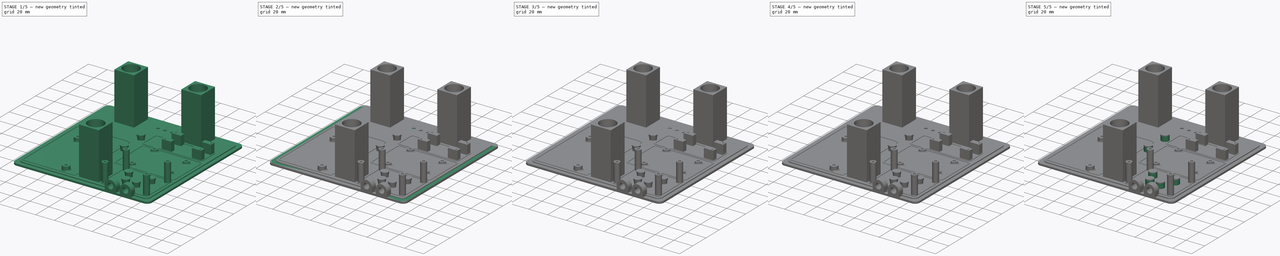
[diagram: build sequence overview — one tinted view per stage of 5, left to right]
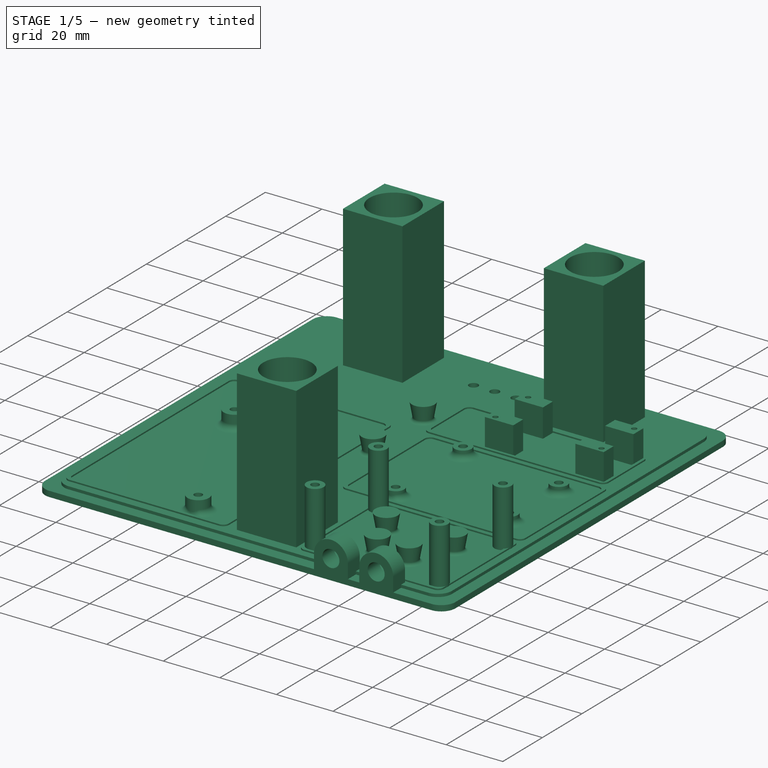
[diagram: stage 1 of 5 — iso view after this stage's code; geometry added in this stage tinted green]
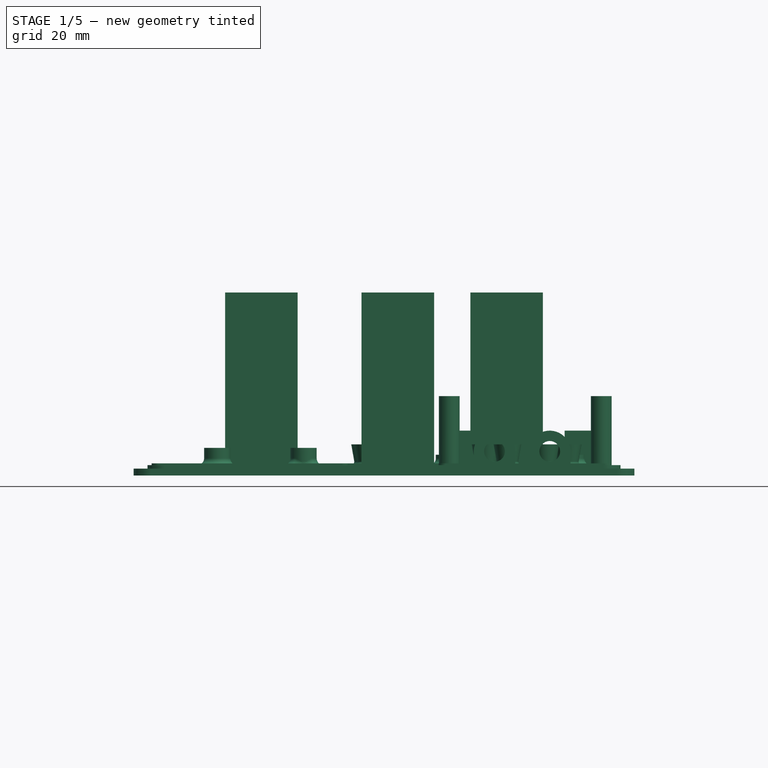
[diagram: stage 1 of 5 — front view after this stage's code; geometry added in this stage tinted green]
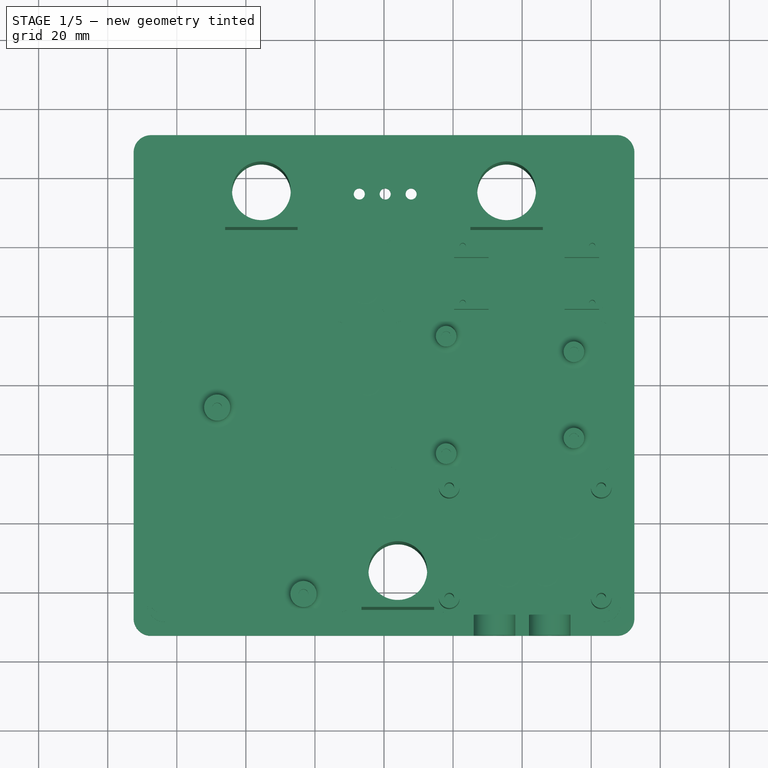
[diagram: stage 1 of 5 — top view after this stage's code; geometry added in this stage tinted green]
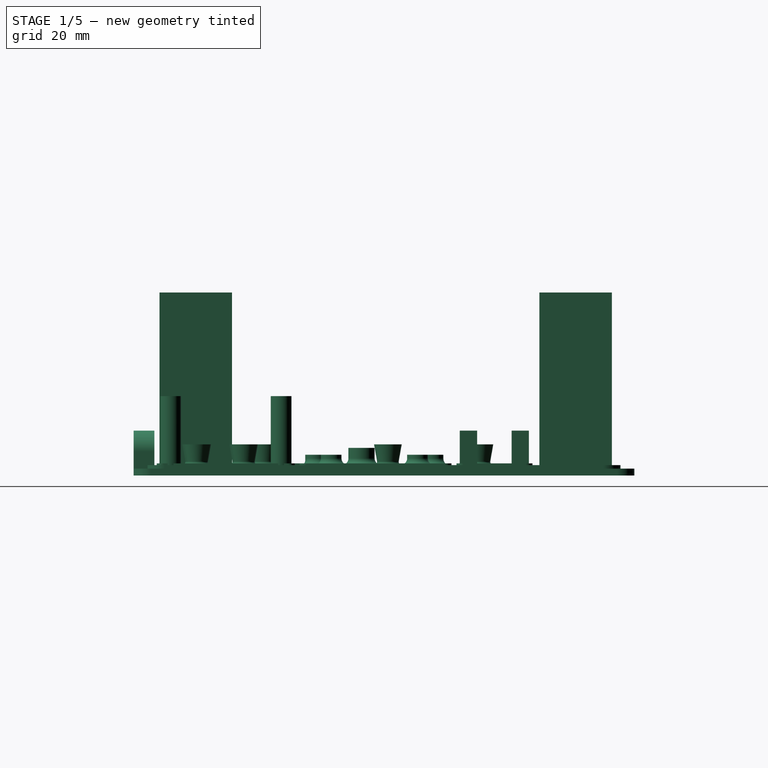
[diagram: stage 1 of 5 — right view after this stage's code; geometry added in this stage tinted green]
FCSTD DOCUMENT  (FreeCAD 0.16R5509 (Git))
Label: case_raspberryB_plate_v4
License: All rights reserved
LicenseURL: http://en.wikipedia.org/wiki/All_rights_reserved
objects: Sketcher::SketchObject×14, PartDesign::Pad×9, PartDesign::Pocket×4, PartDesign::Fillet×2, PartDesign::Draft×2
note: 44 computed .brp shape members not serialized (recipe doc carries the construction recipe); baked Part::Feature solids carry a one-line shape summary decoded from their .brp

FEATURE [PartDesign::Draft] Draft
  Angle = 10
FEATURE [PartDesign::Draft] Draft001
  Angle = 10
  Base = -> Draft [Face148,Face151,Face150,Face149]
  NeutralPlane = -> Draft [Face181]
FEATURE [PartDesign::Fillet] Fillet002
  Base = -> Draft001 [Edge341,Edge344,Edge342,Edge343,Edge103,Edge123,Edge108]
  Radius = 1
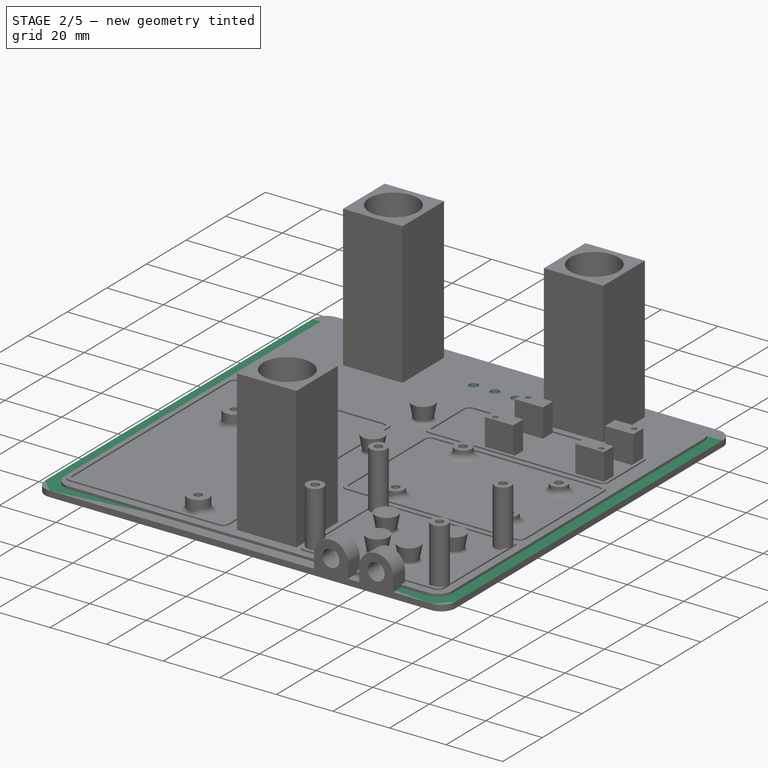
[diagram: stage 2 of 5 — iso view after this stage's code; geometry added in this stage tinted green]
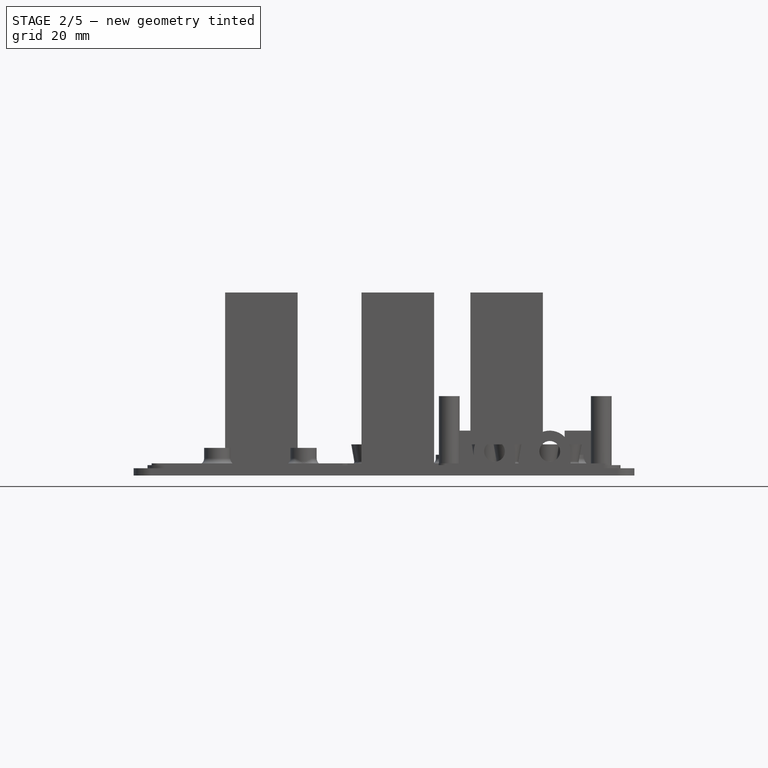
[diagram: stage 2 of 5 — front view after this stage's code; geometry added in this stage tinted green]
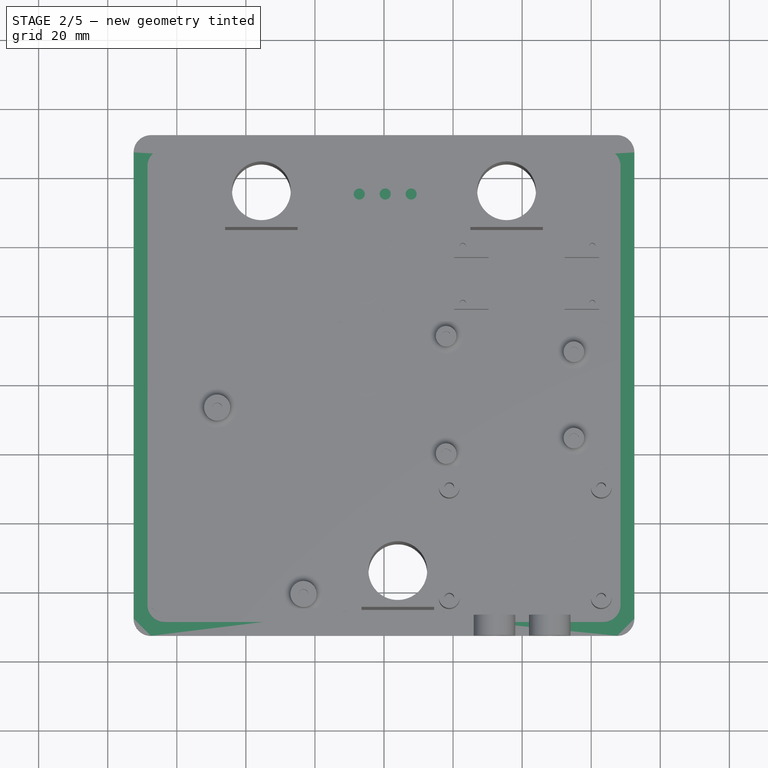
[diagram: stage 2 of 5 — top view after this stage's code; geometry added in this stage tinted green]
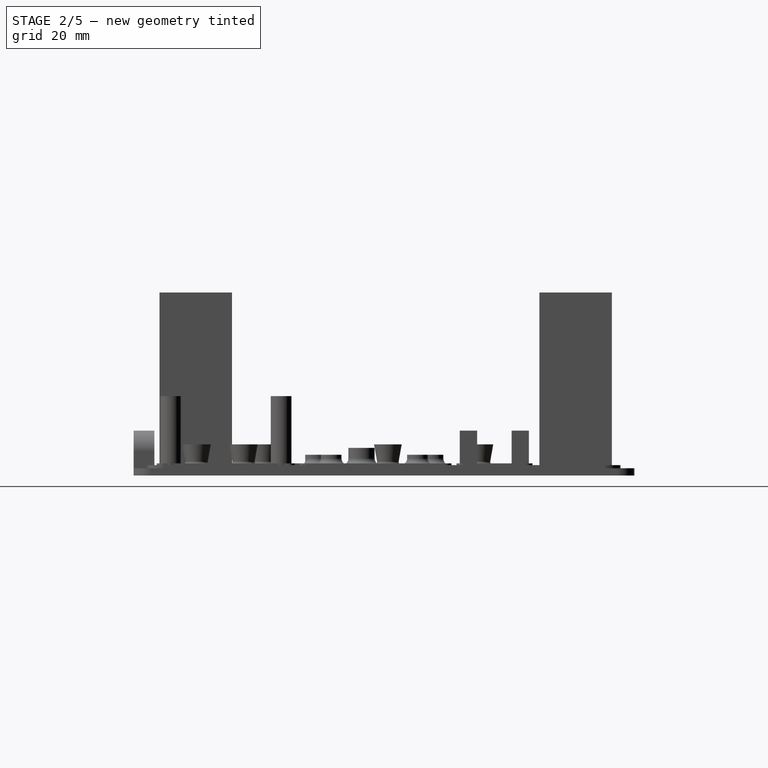
[diagram: stage 2 of 5 — right view after this stage's code; geometry added in this stage tinted green]
FEATURE [Sketcher::SketchObject] Sketch  label="SketchBoard"
  sketch-geometry (8):
    g0: LineSegment StartX=-67.5 StartY=72.5 StartZ=0 EndX=67.5 EndY=72.5 EndZ=0
    g1: LineSegment StartX=72.5 StartY=67.5 StartZ=0 EndX=72.5 EndY=-67.5 EndZ=0
    g2: LineSegment StartX=67.5 StartY=-72.5 StartZ=0 EndX=-67.5 EndY=-72.5 EndZ=0
    g3: LineSegment StartX=-72.5 StartY=-67.5 StartZ=0 EndX=-72.5 EndY=67.5 EndZ=0
    g4: ArcOfCircle CenterX=-67.5 CenterY=67.5 CenterZ=0 NormalX=0 NormalY=0 NormalZ=1 Radius=5 StartAngle=1.5708 EndAngle=3.14159
    g5: ArcOfCircle CenterX=67.5 CenterY=67.5 CenterZ=0 NormalX=0 NormalY=0 NormalZ=1 Radius=5 StartAngle=0 EndAngle=1.5708
    g6: ArcOfCircle CenterX=67.5 CenterY=-67.5 CenterZ=0 NormalX=0 NormalY=0 NormalZ=1 Radius=5 StartAngle=4.71239 EndAngle=6.28319
    g7: ArcOfCircle CenterX=-67.5 CenterY=-67.5 CenterZ=0 NormalX=0 NormalY=0 NormalZ=1 Radius=5 StartAngle=3.14159 EndAngle=4.71239
  constraints (18):
    c: Horizontal(g0)
    c: Horizontal(g2)
    c: Tangent(g3,g4) = 1.5708
    c: Tangent(g0,g4) = 1.5708
    c: Tangent(g0,g5) = 1.5708
    c: Tangent(g1,g5) = 1.5708
    c: Tangent(g1,g6) = 1.5708
    c: Tangent(g2,g6) = 1.5708
    c: Tangent(g3,g7) = 1.5708
    c: Tangent(g2,g7) = 1.5708
    c: Equal(g7,g4)
    c: Equal(g4,g5)
    c: Equal(g5,g6)
    c: Symmetric(g3,g1,g-2)
    c: Symmetric(g0,g2,g-1)
    c: DistanceX(g3,g1) = 145
    c: DistanceY(g0,g2) = -145
    c: Radius(g4) = 5
FEATURE [PartDesign::Pad] Pad  label="Board"
  Length = 2.1
  Length2 = 100
  Sketch = -> Sketch
  Type = 0
FEATURE [Sketcher::SketchObject] Sketch002  label="SketchMountingBolts"
  Placement = pos=(0,0,2.1) rot=(0,0,1;0rad)
  Support = -> Pad [Face10]
  sketch-geometry (16):
    g0: LineSegment [constr] StartX=-65 StartY=66 StartZ=0 EndX=65 EndY=66 EndZ=0
    g1: LineSegment [constr] StartX=65 StartY=66 StartZ=0 EndX=65 EndY=-65 EndZ=0
    g2: LineSegment [constr] StartX=65 StartY=-65 StartZ=0 EndX=-65 EndY=-65 EndZ=0
    g3: LineSegment [constr] StartX=-65 StartY=-65 StartZ=0 EndX=-65 EndY=66 EndZ=0
    g4: LineSegment StartX=-46 StartY=66 StartZ=0 EndX=-25 EndY=66 EndZ=0
    g5: LineSegment StartX=-25 StartY=66 StartZ=0 EndX=-25 EndY=45 EndZ=0
    g6: LineSegment StartX=-46 StartY=45 StartZ=0 EndX=-46 EndY=66 EndZ=0
    g7: LineSegment StartX=14.5 StartY=-44 StartZ=0 EndX=-6.5 EndY=-44 EndZ=0
    g8: LineSegment StartX=-6.5 StartY=-44 StartZ=0 EndX=-6.5 EndY=-65 EndZ=0
    g9: LineSegment StartX=-6.5 StartY=-65 StartZ=0 EndX=14.5 EndY=-65 EndZ=0
    g10: LineSegment StartX=14.5 StartY=-65 StartZ=0 EndX=14.5 EndY=-44 EndZ=0
    g11: LineSegment StartX=25 StartY=66 StartZ=0 EndX=46 EndY=66 EndZ=0
    g12: LineSegment StartX=46 StartY=66 StartZ=0 EndX=46 EndY=45 EndZ=0
    g13: LineSegment StartX=46 StartY=45 StartZ=0 EndX=25 EndY=45 EndZ=0
    g14: LineSegment StartX=25 StartY=45 StartZ=0 EndX=25 EndY=66 EndZ=0
    g15: LineSegment StartX=-46 StartY=45 StartZ=0 EndX=-25 EndY=45 EndZ=0
  constraints (50):
    c: Horizontal(g0)
    c: Horizontal(g2)
    c: Vertical(g1)
    c: Vertical(g3)
    c: DistanceX(g0,g0) = -130
    c: Coincident(g4,g5)
    c: Horizontal(g4)
    c: Vertical(g5)
    c: Vertical(g6)
    c: Distance(g5) = 21
    c: Coincident(g7,g8)
    c: Coincident(g8,g9)
    c: Coincident(g9,g10)
    c: Coincident(g10,g7)
    c: Horizontal(g7)
    c: Horizontal(g9)
    c: Vertical(g8)
    c: Vertical(g10)
    c: PointOnObject(g9,g2)
    c: Coincident(g2,g3)
    c: Coincident(g1,g2)
    c: DistanceY(g-1,g9) = -65
    c: DistanceY(g-1,g0) = 66
    c: DistanceX(g2,g8) = 58.5
    c: DistanceX(g1,g9) = -50.5
    c: DistanceY(g6,g2) = -110
    c: Coincident(g4,g6)
    c: Coincident(g11,g12)
    c: Coincident(g12,g13)
    c: Coincident(g13,g14)
    c: Horizontal(g11)
    c: Horizontal(g13)
    c: Vertical(g12)
    c: Vertical(g14)
    c: Coincident(g11,g14)
    c: Coincident(g0,g3)
    c: Coincident(g0,g1)
    c: Symmetric(g4,g11,g-2)
    c: DistanceX(g5,g13) = 50
    c: PointOnObject(g11,g0)
    c: Symmetric(g0,g0,g-2)
    c: DistanceX(g0,g4) = 19
    c: Coincident(g15,g6)
    c: Coincident(g15,g5)
    c: Horizontal(g15)
    c: Equal(g15,g5)
    c: Equal(g13,g14)
    c: Equal(g14,g5)
    c: Equal(g14,g7)
    c: Equal(g7,g10)
FEATURE [PartDesign::Pad] Pad001  label="MountingBolts"
  Length = 50
  Length2 = 100
  Sketch = -> Sketch002
  Type = 0
FEATURE [Sketcher::SketchObject] Sketch004  label="SketchSuckerMounting"
  Placement = pos=(0,0,52.1) rot=(0,0,1;0rad)
  Support = -> Pad001 [Face24]
  sketch-geometry (5):
    g0: Circle CenterX=-35.5 CenterY=55.5 CenterZ=0 NormalX=0 NormalY=0 NormalZ=1 Radius=8.5
    g1: Circle CenterX=35.5 CenterY=55.5 CenterZ=0 NormalX=0 NormalY=0 NormalZ=1 Radius=8.5
    g2: Circle CenterX=4 CenterY=-54.5 CenterZ=0 NormalX=0 NormalY=0 NormalZ=1 Radius=8.5
    g3: LineSegment [constr] StartX=-35.5 StartY=55.5 StartZ=0 EndX=0 EndY=55.5 EndZ=0
    g4: LineSegment [constr] StartX=0 StartY=55.5 StartZ=0 EndX=35.5 EndY=55.5 EndZ=0
  constraints (13):
    c: Symmetric(g0,g1,g-2)
    c: Radius(g1) = 8.5
    c: Equal(g2,g1)
    c: Coincident(g3,g0)
    c: PointOnObject(g3,g-2)
    c: Horizontal(g3)
    c: Coincident(g4,g3)
    c: Coincident(g4,g1)
    c: DistanceX(g-1,g2) = 4
    c: DistanceY(g-1,g2) = -54.5
    c: DistanceY(g-1,g1) = 55.5
    c: Equal(g0,g1)
    c: DistanceX(g0,g1) = 71
FEATURE [Sketcher::SketchObject] Sketch007  label="SketchCardLogo"
  ExternalGeometry = -> [Pad]
  Placement = pos=(0,0,0) rot=(1,0,0;3.14159rad)
  sketch-geometry (16):
    g0: LineSegment StartX=-66.6201 StartY=28.4021 StartZ=0 EndX=-28.6201 EndY=28.4021 EndZ=0
    g1: LineSegment StartX=-26.6201 StartY=26.4021 StartZ=0 EndX=-26.6201 EndY=-31.5979 EndZ=0
    g2: LineSegment StartX=-28.6201 StartY=-33.5979 StartZ=0 EndX=-66.6201 EndY=-33.5979 EndZ=0
    g3: LineSegment StartX=-68.6201 StartY=-31.5979 StartZ=0 EndX=-68.6201 EndY=26.4021 EndZ=0
    g4: ArcOfCircle CenterX=-66.6201 CenterY=26.4021 CenterZ=0 NormalX=0 NormalY=0 NormalZ=1 Radius=2 StartAngle=1.5708 EndAngle=3.14159
    g5: ArcOfCircle CenterX=-28.6201 CenterY=26.4021 CenterZ=0 NormalX=0 NormalY=0 NormalZ=1 Radius=2 StartAngle=0 EndAngle=1.5708
    g6: ArcOfCircle CenterX=-28.6201 CenterY=-31.5979 CenterZ=0 NormalX=0 NormalY=0 NormalZ=1 Radius=2 StartAngle=4.71239 EndAngle=6.28319
    g7: ArcOfCircle CenterX=-66.6201 CenterY=-31.5979 CenterZ=0 NormalX=0 NormalY=0 NormalZ=1 Radius=2 StartAngle=3.14159 EndAngle=4.71239
    g8: LineSegment StartX=-67.6201 StartY=29.4021 StartZ=0 EndX=-27.6201 EndY=29.4021 EndZ=0
    g9: LineSegment StartX=-25.6201 StartY=27.4021 StartZ=0 EndX=-25.6201 EndY=-32.5979 EndZ=0
    g10: LineSegment StartX=-27.6201 StartY=-34.5979 StartZ=0 EndX=-67.6201 EndY=-34.5979 EndZ=0
    g11: LineSegment StartX=-69.6201 StartY=-32.5979 StartZ=0 EndX=-69.6201 EndY=27.4021 EndZ=0
    g12: ArcOfCircle CenterX=-67.6201 CenterY=27.4021 CenterZ=0 NormalX=0 NormalY=0 NormalZ=1 Radius=2 StartAngle=1.5708 EndAngle=3.14159
    g13: ArcOfCircle CenterX=-27.6201 CenterY=27.4021 CenterZ=0 NormalX=0 NormalY=0 NormalZ=1 Radius=2 StartAngle=0 EndAngle=1.5708
    g14: ArcOfCircle CenterX=-27.6201 CenterY=-32.5979 CenterZ=0 NormalX=0 NormalY=0 NormalZ=1 Radius=2 StartAngle=4.71239 EndAngle=6.28319
    g15: ArcOfCircle CenterX=-67.6201 CenterY=-32.5979 CenterZ=0 NormalX=0 NormalY=0 NormalZ=1 Radius=2 StartAngle=3.14159 EndAngle=4.71239
  constraints (38):
    c: Tangent(g0,g4) = 1.5708
    c: Tangent(g3,g4) = 1.5708
    c: Tangent(g0,g5) = 1.5708
    c: Tangent(g1,g5) = 1.5708
    c: Tangent(g2,g6) = 1.5708
    c: Tangent(g1,g6) = 1.5708
    c: Tangent(g2,g7) = 1.5708
    c: Tangent(g3,g7) = 1.5708
    c: Horizontal(g0)
    c: Vertical(g1)
    c: Vertical(g3)
    c: Horizontal(g2)
    c: DistanceY(g2,g0) = 62
    c: Equal(g4,g7)
    c: Equal(g7,g6)
    c: Equal(g6,g5)
    c: Radius(g5) = 2
    c: Tangent(g8,g12) = 1.5708
    c: Tangent(g11,g12) = 1.5708
    c: Tangent(g8,g13) = 1.5708
    c: Tangent(g9,g13) = 1.5708
    c: Tangent(g10,g14) = 1.5708
    c: Tangent(g9,g14) = 1.5708
    c: Tangent(g10,g15) = 1.5708
    c: Tangent(g11,g15) = 1.5708
    c: Horizontal(g8)
    c: Vertical(g9)
    c: Vertical(g11)
    c: Horizontal(g10)
    c: DistanceY(g10,g8) = 64
    c: Equal(g12,g15)
    c: Equal(g15,g14)
    c: Equal(g14,g13)
    c: Equal(g5,g13) = 2
    c: DistanceX(g11,g9) = 44
    c: DistanceX(g3,g1) = 42
    c: DistanceY(g8,g0) = -1
    c: DistanceX(g11,g3) = 1
FEATURE [PartDesign::Pocket] Pocket  label="SuckerMounting"
  Length = 5
  Sketch = -> Sketch004
  Type = 1
FEATURE [Sketcher::SketchObject] Sketch008  label="SketchAntennaLogo"
  ExternalGeometry = -> [Pad]
  Placement = pos=(0,0,0) rot=(1,0,0;3.14159rad)
  Support = -> Fillet002 [Face98]
  sketch-geometry (19):
    g0: LineSegment [constr] StartX=12.5339 StartY=0 StartZ=0 EndX=35 EndY=0 EndZ=0
    g1: LineSegment [constr] StartX=35 StartY=0 StartZ=0 EndX=57.4661 EndY=0 EndZ=0
    g2: ArcOfCircle CenterX=35 CenterY=0 CenterZ=0 NormalX=0 NormalY=0 NormalZ=1 Radius=19.5811 StartAngle=0.872665 EndAngle=2.26893
    g3: ArcOfCircle CenterX=35 CenterY=0 CenterZ=0 NormalX=0 NormalY=0 NormalZ=1 Radius=18.9538 StartAngle=0.913092 EndAngle=2.2285
    g4: LineSegment [constr] StartX=35 StartY=0 StartZ=0 EndX=35 EndY=26.6366 EndZ=0
    g5: LineSegment StartX=22.4135 StartY=15 StartZ=0 EndX=23.4135 EndY=15 EndZ=0
    g6: LineSegment StartX=46.5865 StartY=15 StartZ=0 EndX=47.5865 EndY=15 EndZ=0
    g7: ArcOfCircle CenterX=35 CenterY=0 CenterZ=0 NormalX=0 NormalY=0 NormalZ=1 Radius=11.1125 StartAngle=0.803674 EndAngle=2.33792
    g8: ArcOfCircle CenterX=35 CenterY=0 CenterZ=0 NormalX=0 NormalY=0 NormalZ=1 Radius=10.4433 StartAngle=0.872665 EndAngle=2.26893
    g9: LineSegment StartX=41.7128 StartY=8 StartZ=0 EndX=42.7128 EndY=8 EndZ=0
    g10: LineSegment StartX=27.2872 StartY=8 StartZ=0 EndX=28.2872 EndY=8 EndZ=0
    g11: ArcOfCircle CenterX=35 CenterY=0 CenterZ=0 NormalX=0 NormalY=0 NormalZ=1 Radius=10.4433 StartAngle=4.01426 EndAngle=5.41052
    g12: ArcOfCircle CenterX=35 CenterY=0 CenterZ=0 NormalX=0 NormalY=0 NormalZ=1 Radius=11.1125 StartAngle=3.94527 EndAngle=5.47951
    g13: ArcOfCircle CenterX=35 CenterY=0 CenterZ=0 NormalX=0 NormalY=0 NormalZ=1 Radius=19.5811 StartAngle=4.01426 EndAngle=5.41052
    g14: ArcOfCircle CenterX=35 CenterY=0 CenterZ=0 NormalX=0 NormalY=0 NormalZ=1 Radius=20.2384 StartAngle=3.9764 EndAngle=5.44838
    g15: LineSegment StartX=21.4135 StartY=-15 StartZ=0 EndX=22.4135 EndY=-15 EndZ=0
    g16: LineSegment StartX=27.2872 StartY=-8 StartZ=0 EndX=28.2872 EndY=-8 EndZ=0
    g17: LineSegment StartX=41.7128 StartY=-8 StartZ=0 EndX=42.7128 EndY=-8 EndZ=0
    g18: LineSegment StartX=47.5865 StartY=-15 StartZ=0 EndX=48.5865 EndY=-15 EndZ=0
  constraints (56):
    c: Horizontal(g0)
    c: Coincident(g0,g1)
    c: Horizontal(g1)
    c: Coincident(g2,g0)
    c: Coincident(g3,g0)
    c: Angle(g2) = 1.39626
    c: Coincident(g4,g0)
    c: Vertical(g4)
    c: Equal(g1,g0)
    c: Coincident(g5,g2)
    c: Horizontal(g5)
    c: Coincident(g6,g3)
    c: Coincident(g6,g2)
    c: Coincident(g5,g3)
    c: Horizontal(g6)
    c: Distance(g5) = 1
    c: DistanceY(g3,g0) = -15
    c: DistanceY(g2,g0) = -15
    c: Coincident(g7,g0)
    c: Coincident(g8,g0)
    c: Coincident(g9,g8)
    c: Coincident(g9,g7)
    c: Coincident(g10,g7)
    c: Coincident(g10,g8)
    c: Horizontal(g10)
    c: Horizontal(g9)
    c: DistanceY(g7,g0) = -8
    c: DistanceY(g7,g0) = -8
    c: Equal(g10,g5)
    c: Angle(g8) = 1.39626
    c: Coincident(g11,g0)
    c: Coincident(g12,g0)
    c: Coincident(g13,g0)
    c: Coincident(g14,g0)
    c: Coincident(g15,g14)
    c: Coincident(g15,g13)
    c: Coincident(g16,g12)
    c: Coincident(g16,g11)
    c: Coincident(g17,g11)
    c: Coincident(g17,g12)
    c: Coincident(g18,g13)
    c: Coincident(g18,g14)
    c: Equal(g15,g5)
    c: Equal(g15,g16)
    c: Equal(g16,g17)
    c: Equal(g17,g18)
    c: Horizontal(g15)
    c: Horizontal(g16)
    c: Horizontal(g17)
    c: Horizontal(g18)
    c: DistanceY(g12,g0) = 8
    c: Angle(g11) = 1.39626
    c: Angle(g13) = 1.39626
    c: DistanceY(g14,g0) = 15
    c: PointOnObject(g1,g-1)
    c: DistanceX(g-1,g4) = 35
FEATURE [PartDesign::Pocket] Pocket003
  Length = 0.6
  Sketch = -> Sketch008
  Type = 0
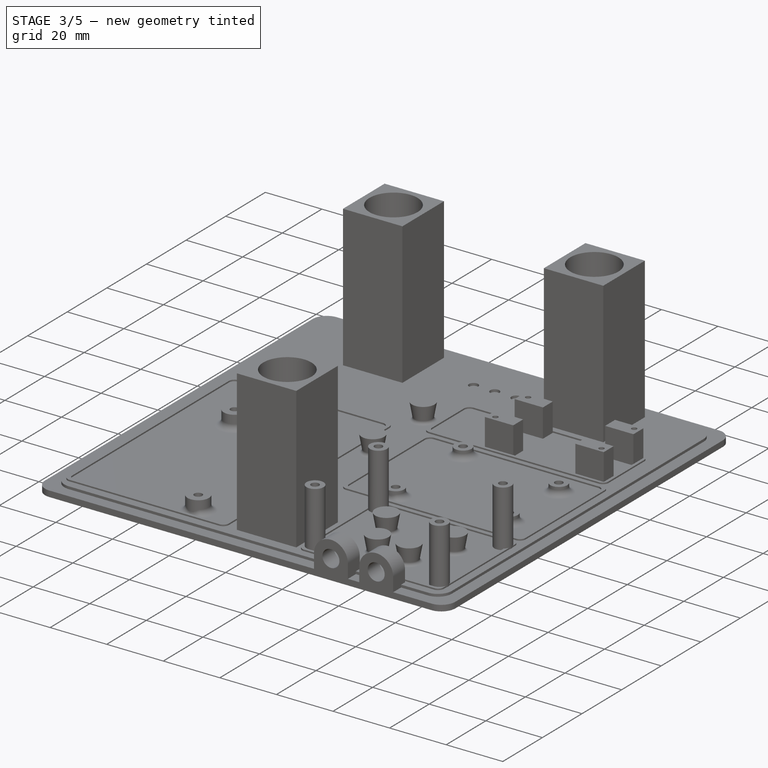
[diagram: stage 3 of 5 — iso view after this stage's code; geometry added in this stage tinted green]
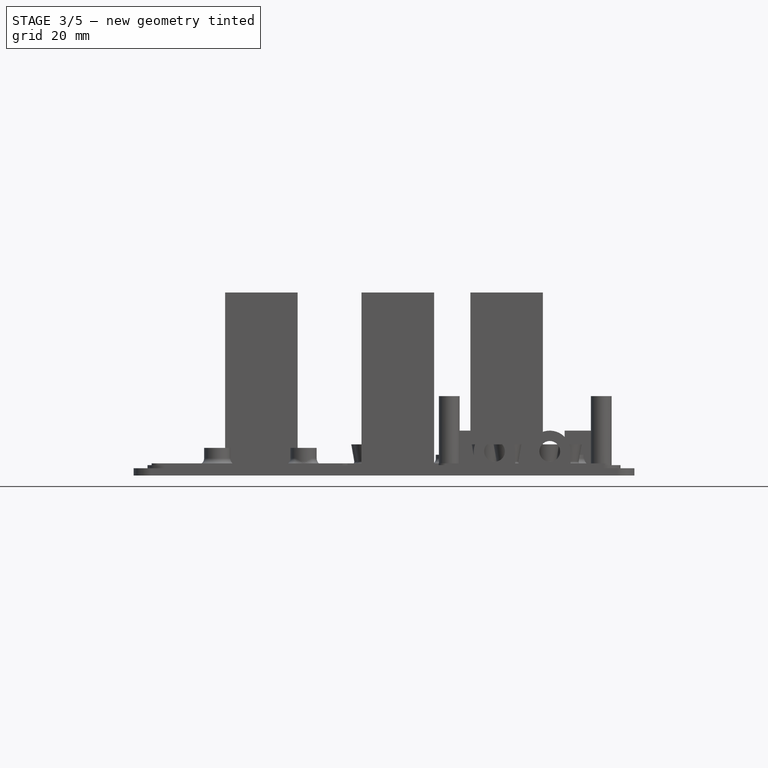
[diagram: stage 3 of 5 — front view after this stage's code; geometry added in this stage tinted green]
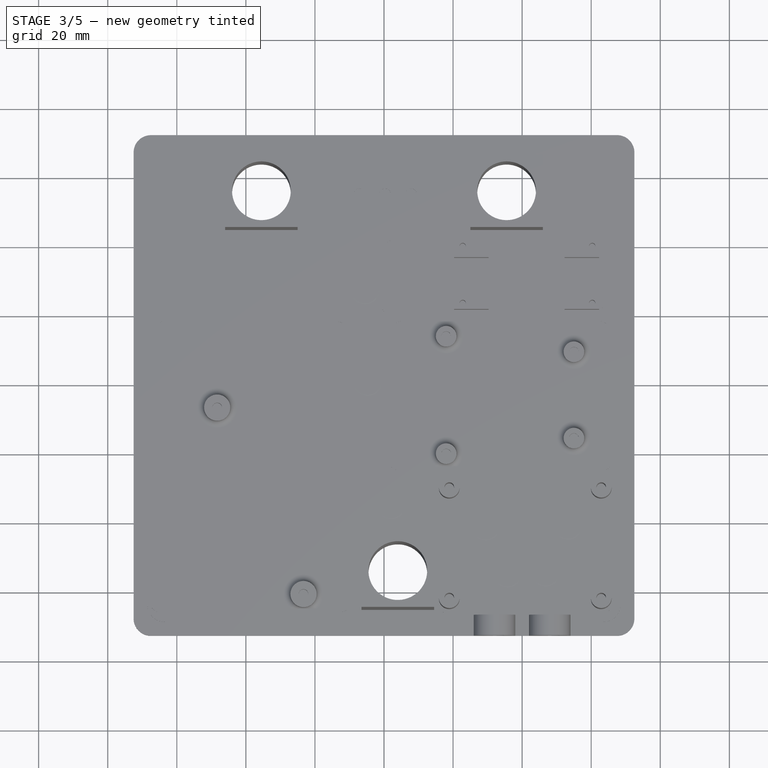
[diagram: stage 3 of 5 — top view after this stage's code; geometry added in this stage tinted green]
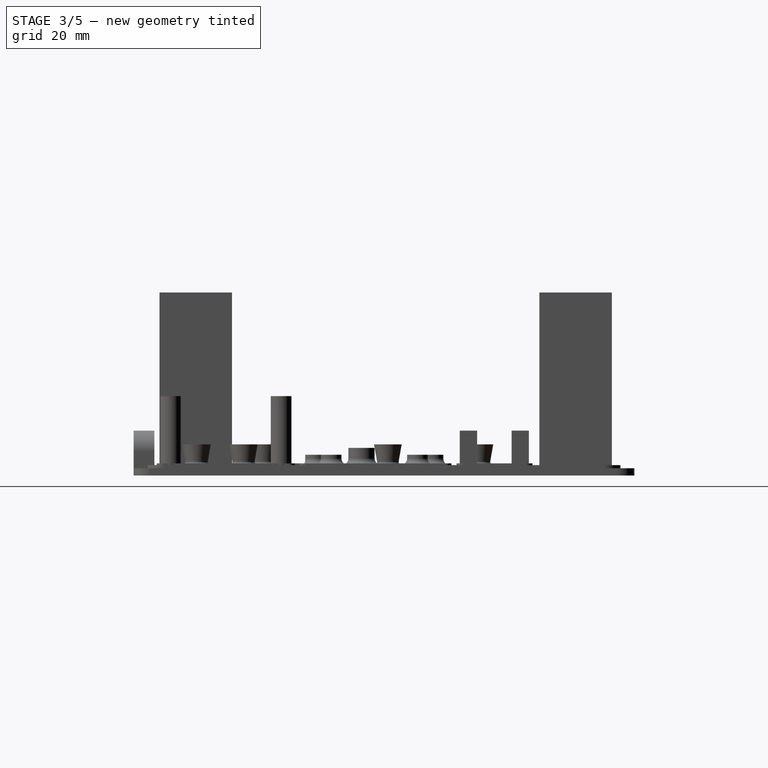
[diagram: stage 3 of 5 — right view after this stage's code; geometry added in this stage tinted green]
FEATURE [Sketcher::SketchObject] Sketch001  label="SketchPositions"
  ExternalGeometry = -> [Pad]
  Placement = pos=(0,0,2.1) rot=(0,0,1;0rad)
  Support = -> Pocket [Face5]
  sketch-geometry (68):
    g0: LineSegment StartX=4.77696 StartY=18.5307 StartZ=0 EndX=62.777 EndY=18.5307 EndZ=0
    g1: LineSegment StartX=64.777 StartY=16.5307 StartZ=0 EndX=64.777 EndY=-21.4693 EndZ=0
    g2: LineSegment StartX=62.777 StartY=-23.4693 StartZ=0 EndX=4.77696 EndY=-23.4693 EndZ=0
    g3: LineSegment StartX=2.77696 StartY=-21.4693 StartZ=0 EndX=2.77696 EndY=16.5307 EndZ=0
    g4: ArcOfCircle CenterX=4.77696 CenterY=16.5307 CenterZ=0 NormalX=0 NormalY=0 NormalZ=1 Radius=2 StartAngle=1.5708 EndAngle=3.14159
    g5: ArcOfCircle CenterX=62.777 CenterY=16.5307 CenterZ=0 NormalX=0 NormalY=0 NormalZ=1 Radius=2 StartAngle=0 EndAngle=1.5708
    g6: ArcOfCircle CenterX=62.777 CenterY=-21.4693 CenterZ=0 NormalX=0 NormalY=0 NormalZ=1 Radius=2 StartAngle=4.71239 EndAngle=6.28319
    g7: ArcOfCircle CenterX=4.77696 CenterY=-21.4693 CenterZ=0 NormalX=0 NormalY=0 NormalZ=1 Radius=2 StartAngle=3.14159 EndAngle=4.71239
    g8: LineSegment StartX=3.77696 StartY=19.5307 StartZ=0 EndX=63.777 EndY=19.5307 EndZ=0
    g9: LineSegment StartX=65.777 StartY=17.5307 StartZ=0 EndX=65.777 EndY=-22.4693 EndZ=0
    g10: LineSegment StartX=63.777 StartY=-24.4693 StartZ=0 EndX=3.77696 EndY=-24.4693 EndZ=0
    g11: LineSegment StartX=1.77696 StartY=-22.4693 StartZ=0 EndX=1.77696 EndY=17.5307 EndZ=0
    g12: ArcOfCircle CenterX=3.77696 CenterY=17.5307 CenterZ=0 NormalX=0 NormalY=0 NormalZ=1 Radius=2 StartAngle=1.5708 EndAngle=3.14159
    g13: ArcOfCircle CenterX=63.777 CenterY=17.5307 CenterZ=0 NormalX=0 NormalY=0 NormalZ=1 Radius=2 StartAngle=0 EndAngle=1.5708
    g14: ArcOfCircle CenterX=63.777 CenterY=-22.4693 CenterZ=0 NormalX=0 NormalY=0 NormalZ=1 Radius=2 StartAngle=4.71239 EndAngle=6.28319
    g15: ArcOfCircle CenterX=3.77696 CenterY=-22.4693 CenterZ=0 NormalX=0 NormalY=0 NormalZ=1 Radius=2 StartAngle=3.14159 EndAngle=4.71239
    g16: LineSegment StartX=18.7879 StartY=-26.8053 StartZ=0 EndX=62.7879 EndY=-26.8053 EndZ=0
    g17: LineSegment StartX=64.7879 StartY=-28.8053 StartZ=0 EndX=64.7879 EndY=-62.8053 EndZ=0
    g18: LineSegment StartX=62.7879 StartY=-64.8053 StartZ=0 EndX=18.7879 EndY=-64.8053 EndZ=0
    g19: LineSegment StartX=16.7879 StartY=-62.8053 StartZ=0 EndX=16.7879 EndY=-28.8053 EndZ=0
    g20: ArcOfCircle CenterX=18.7879 CenterY=-28.8053 CenterZ=0 NormalX=0 NormalY=0 NormalZ=1 Radius=2 StartAngle=1.5708 EndAngle=3.14159
    g21: ArcOfCircle CenterX=62.7879 CenterY=-28.8053 CenterZ=0 NormalX=0 NormalY=0 NormalZ=1 Radius=2 StartAngle=0 EndAngle=1.5708
    g22: ArcOfCircle CenterX=62.7879 CenterY=-62.8053 CenterZ=0 NormalX=0 NormalY=0 NormalZ=1 Radius=2 StartAngle=4.71239 EndAngle=6.28319
    g23: ArcOfCircle CenterX=18.7879 CenterY=-62.8053 CenterZ=0 NormalX=0 NormalY=0 NormalZ=1 Radius=2 StartAngle=3.14159 EndAngle=4.71239
    g24: LineSegment StartX=17.7879 StartY=-25.8053 StartZ=0 EndX=63.7879 EndY=-25.8053 EndZ=0
    g25: LineSegment StartX=65.7879 StartY=-27.8053 StartZ=0 EndX=65.7879 EndY=-63.8053 EndZ=0
    g26: LineSegment StartX=63.7879 StartY=-65.8053 StartZ=0 EndX=17.7879 EndY=-65.8053 EndZ=0
    g27: LineSegment StartX=15.7879 StartY=-63.8053 StartZ=0 EndX=15.7879 EndY=-27.8053 EndZ=0
    g28: ArcOfCircle CenterX=17.7879 CenterY=-27.8053 CenterZ=0 NormalX=0 NormalY=0 NormalZ=1 Radius=2 StartAngle=1.5708 EndAngle=3.14159
    g29: ArcOfCircle CenterX=63.7879 CenterY=-27.8053 CenterZ=0 NormalX=0 NormalY=0 NormalZ=1 Radius=2 StartAngle=0 EndAngle=1.5708
    g30: ArcOfCircle CenterX=63.7879 CenterY=-63.8053 CenterZ=0 NormalX=0 NormalY=0 NormalZ=1 Radius=2 StartAngle=4.71239 EndAngle=6.28319
    g31: ArcOfCircle CenterX=17.7879 CenterY=-63.8053 CenterZ=0 NormalX=0 NormalY=0 NormalZ=1 Radius=2 StartAngle=3.14159 EndAngle=4.71239
    g32: LineSegment StartX=-64.2903 StartY=18.3849 StartZ=0 EndX=-13.2903 EndY=18.3849 EndZ=0
    g33: LineSegment StartX=-11.2903 StartY=16.3849 StartZ=0 EndX=-11.2903 EndY=-62.6151 EndZ=0
    g34: LineSegment StartX=-13.2903 StartY=-64.6151 StartZ=0 EndX=-64.2903 EndY=-64.6151 EndZ=0
    g35: LineSegment StartX=-66.2903 StartY=-62.6151 StartZ=0 EndX=-66.2903 EndY=16.3849 EndZ=0
    g36: ArcOfCircle CenterX=-64.2903 CenterY=16.3849 CenterZ=0 NormalX=0 NormalY=0 NormalZ=1 Radius=2 StartAngle=1.5708 EndAngle=3.14159
    g37: ArcOfCircle CenterX=-13.2903 CenterY=16.3849 CenterZ=0 NormalX=0 NormalY=0 NormalZ=1 Radius=2 StartAngle=0 EndAngle=1.5708
    g38: ArcOfCircle CenterX=-13.2903 CenterY=-62.6151 CenterZ=0 NormalX=0 NormalY=0 NormalZ=1 Radius=2 StartAngle=4.71239 EndAngle=6.28319
    g39: ArcOfCircle CenterX=-64.2903 CenterY=-62.6151 CenterZ=0 NormalX=0 NormalY=0 NormalZ=1 Radius=2 StartAngle=3.14159 EndAngle=4.71239
    g40: LineSegment StartX=-65.2903 StartY=19.3849 StartZ=0 EndX=-12.2903 EndY=19.3849 EndZ=0
    g41: LineSegment StartX=-12.2903 StartY=-65.6151 StartZ=0 EndX=-65.2903 EndY=-65.6151 EndZ=0
    g42: LineSegment StartX=-67.2903 StartY=-63.6151 StartZ=0 EndX=-67.2903 EndY=17.3849 EndZ=0
    g43: ArcOfCircle CenterX=-65.2903 CenterY=17.3849 CenterZ=0 NormalX=0 NormalY=0 NormalZ=1 Radius=2 StartAngle=1.5708 EndAngle=3.14159
    g44: ArcOfCircle CenterX=-12.2903 CenterY=17.3849 CenterZ=0 NormalX=0 NormalY=0 NormalZ=1 Radius=2 StartAngle=0 EndAngle=1.5708
    g45: ArcOfCircle CenterX=-12.2903 CenterY=-63.6151 CenterZ=0 NormalX=0 NormalY=0 NormalZ=1 Radius=2 StartAngle=4.71239 EndAngle=6.28319
    g46: ArcOfCircle CenterX=-65.2903 CenterY=-63.6151 CenterZ=0 NormalX=0 NormalY=0 NormalZ=1 Radius=2 StartAngle=3.14159 EndAngle=4.71239
    g47: LineSegment StartX=-10.2903 StartY=-63.6151 StartZ=0 EndX=-10.2903 EndY=-28.6151 EndZ=0
    g48: LineSegment StartX=-10.2903 StartY=-28.6151 StartZ=0 EndX=-4.29028 EndY=-28.6151 EndZ=0
    g49: LineSegment StartX=-4.29028 StartY=-28.6151 StartZ=0 EndX=-4.29028 EndY=-21.6151 EndZ=0
    g50: LineSegment StartX=-4.29028 StartY=-21.6151 StartZ=0 EndX=-10.2903 EndY=-21.6151 EndZ=0
    g51: LineSegment StartX=-10.2903 StartY=-21.6151 StartZ=0 EndX=-10.2903 EndY=17.3849 EndZ=0
    g52: LineSegment StartX=2.26174 StartY=41.9964 StartZ=0 EndX=60.2617 EndY=41.9964 EndZ=0
    g53: LineSegment StartX=62.2617 StartY=39.9964 StartZ=0 EndX=62.2617 EndY=23.9964 EndZ=0
    g54: LineSegment StartX=60.2617 StartY=21.9964 StartZ=0 EndX=2.26174 EndY=21.9964 EndZ=0
    g55: LineSegment StartX=0.261743 StartY=23.9964 StartZ=0 EndX=0.261743 EndY=39.9964 EndZ=0
    g56: ArcOfCircle CenterX=2.26174 CenterY=39.9964 CenterZ=0 NormalX=0 NormalY=0 NormalZ=1 Radius=2 StartAngle=1.5708 EndAngle=3.14159
    g57: ArcOfCircle CenterX=60.2617 CenterY=39.9964 CenterZ=0 NormalX=0 NormalY=0 NormalZ=1 Radius=2 StartAngle=0 EndAngle=1.5708
    g58: ArcOfCircle CenterX=60.2617 CenterY=23.9964 CenterZ=0 NormalX=0 NormalY=0 NormalZ=1 Radius=2 StartAngle=4.71239 EndAngle=6.28319
    g59: ArcOfCircle CenterX=2.26174 CenterY=23.9964 CenterZ=0 NormalX=0 NormalY=0 NormalZ=1 Radius=2 StartAngle=3.14159 EndAngle=4.71239
    g60: LineSegment StartX=1.26174 StartY=42.9964 StartZ=0 EndX=61.2617 EndY=42.9964 EndZ=0
    g61: LineSegment StartX=63.2617 StartY=40.9964 StartZ=0 EndX=63.2617 EndY=22.9964 EndZ=0
    g62: LineSegment StartX=61.2617 StartY=20.9964 StartZ=0 EndX=1.26174 EndY=20.9964 EndZ=0
    g63: LineSegment StartX=-0.738257 StartY=22.9964 StartZ=0 EndX=-0.738257 EndY=40.9964 EndZ=0
    g64: ArcOfCircle CenterX=1.26174 CenterY=40.9964 CenterZ=0 NormalX=0 NormalY=0 NormalZ=1 Radius=2 StartAngle=1.5708 EndAngle=3.14159
    g65: ArcOfCircle CenterX=61.2617 CenterY=40.9964 CenterZ=0 NormalX=0 NormalY=0 NormalZ=1 Radius=2 StartAngle=0 EndAngle=1.5708
    g66: ArcOfCircle CenterX=61.2617 CenterY=22.9964 CenterZ=0 NormalX=0 NormalY=0 NormalZ=1 Radius=2 StartAngle=4.71239 EndAngle=6.28319
    g67: ArcOfCircle CenterX=1.26174 CenterY=22.9964 CenterZ=0 NormalX=0 NormalY=0 NormalZ=1 Radius=2 StartAngle=3.14159 EndAngle=4.71239
  constraints (165):
    c: Tangent(g0,g4) = 1.5708
    c: Tangent(g3,g4) = 1.5708
    c: Tangent(g0,g5) = 1.5708
    c: Tangent(g1,g5) = 1.5708
    c: Tangent(g2,g6) = 1.5708
    c: Tangent(g1,g6) = 1.5708
    c: Tangent(g2,g7) = 1.5708
    c: Tangent(g3,g7) = 1.5708
    c: Horizontal(g0)
    c: Vertical(g1)
    c: Vertical(g3)
    c: Horizontal(g2)
    c: DistanceY(g2,g0) = 42
    c: Equal(g4,g7)
    c: Equal(g7,g6)
    c: Equal(g6,g5)
    c: Radius(g5) = 2
    c: Tangent(g8,g12) = 1.5708
    c: Tangent(g11,g12) = 1.5708
    c: Tangent(g8,g13) = 1.5708
    c: Tangent(g9,g13) = 1.5708
    c: Tangent(g10,g14) = 1.5708
    c: Tangent(g9,g14) = 1.5708
    c: Tangent(g10,g15) = 1.5708
    c: Tangent(g11,g15) = 1.5708
    c: Horizontal(g8)
    c: Vertical(g9)
    c: Vertical(g11)
    c: Horizontal(g10)
    c: DistanceY(g10,g8) = 44
    c: Equal(g12,g15)
    c: Equal(g15,g14)
    c: Equal(g14,g13)
    c: Equal(g5,g13) = 2
    c: DistanceX(g11,g9) = 64
    c: DistanceX(g3,g1) = 62
    c: DistanceY(g8,g0) = -1
    c: DistanceX(g11,g3) = 1
    c: Tangent(g16,g20) = 1.5708
    c: Tangent(g19,g20) = 1.5708
    c: Tangent(g16,g21) = 1.5708
    c: Tangent(g17,g21) = 1.5708
    c: Tangent(g18,g22) = 1.5708
    c: Tangent(g17,g22) = 1.5708
    c: Tangent(g18,g23) = 1.5708
    c: Tangent(g19,g23) = 1.5708
    c: Horizontal(g16)
    c: Vertical(g17)
    c: Vertical(g19)
    c: Horizontal(g18)
    c: DistanceY(g18,g16) = 38
    c: Equal(g20,g23)
    c: Equal(g23,g22)
    c: Equal(g22,g21)
    c: Equal(g5,g21) = 2
    c: Tangent(g24,g28) = 1.5708
    c: Tangent(g27,g28) = 1.5708
    c: Tangent(g24,g29) = 1.5708
    c: Tangent(g25,g29) = 1.5708
    c: Tangent(g26,g30) = 1.5708
    c: Tangent(g25,g30) = 1.5708
    c: Tangent(g26,g31) = 1.5708
    c: Tangent(g27,g31) = 1.5708
    c: Horizontal(g24)
    c: Vertical(g25)
    c: Vertical(g27)
    c: Horizontal(g26)
    c: DistanceY(g26,g24) = 40
    c: Equal(g28,g31)
    c: Equal(g31,g30)
    c: Equal(g30,g29)
    c: Equal(g21,g29) = 2
    c: DistanceX(g27,g25) = 50
    c: DistanceX(g19,g17) = 48
    c: DistanceY(g24,g16) = -1
    c: DistanceX(g27,g19) = 1
    c: Tangent(g32,g36) = 1.5708
    c: Tangent(g35,g36) = 1.5708
    c: Tangent(g32,g37) = 1.5708
    c: Tangent(g33,g37) = 1.5708
    c: Tangent(g34,g38) = 1.5708
    c: Tangent(g33,g38) = 1.5708
    c: Tangent(g34,g39) = 1.5708
    c: Tangent(g35,g39) = 1.5708
    c: Horizontal(g32)
    c: Vertical(g33)
    c: Vertical(g35)
    c: Horizontal(g34)
    c: DistanceY(g34,g32) = 83
    c: Equal(g36,g39)
    c: Equal(g39,g38)
    c: Equal(g38,g37)
    c: Tangent(g40,g43) = 1.5708
    c: Tangent(g42,g43) = 1.5708
    c: Tangent(g40,g44) = 1.5708
    c: Tangent(g41,g45) = 1.5708
    c: Tangent(g41,g46) = 1.5708
    c: Tangent(g42,g46) = 1.5708
    c: Horizontal(g40)
    c: Vertical(g42)
    c: Horizontal(g41)
    c: DistanceY(g41,g40) = 85
    c: Equal(g43,g46)
    c: Equal(g46,g45)
    c: Equal(g45,g44)
    c: Equal(g37,g44) = 2
    c: DistanceX(g35,g33) = 55
    c: DistanceY(g40,g32) = -1
    c: DistanceX(g42,g35) = 1
    c: Radius(g43) = 2
    c: Tangent(g45,g47) = -1.5708
    c: Coincident(g47,g48)
    c: Horizontal(g48)
    c: Coincident(g48,g49)
    c: Vertical(g49)
    c: Coincident(g49,g50)
    c: Horizontal(g50)
    c: Coincident(g50,g51)
    c: Coincident(g51,g44)
    c: Vertical(g51)
    c: Distance(g50) = 6
    c: Equal(g50,g48)
    c: DistanceX(g33,g44) = 1
    c: Distance(g49) = 7
    c: Vertical(g47)
    c: DistanceY(g32,g50) = -40
    c: Tangent(g52,g56) = 1.5708
    c: Tangent(g55,g56) = 1.5708
    c: Tangent(g52,g57) = 1.5708
    c: Tangent(g53,g57) = 1.5708
    c: Tangent(g54,g58) = 1.5708
    c: Tangent(g53,g58) = 1.5708
    c: Tangent(g54,g59) = 1.5708
    c: Tangent(g55,g59) = 1.5708
    c: Horizontal(g52)
    c: Vertical(g53)
    c: Vertical(g55)
    c: Horizontal(g54)
    c: DistanceY(g54,g52) = 20
    c: Equal(g56,g59)
    c: Equal(g59,g58)
    c: Equal(g58,g57)
    c: Tangent(g60,g64) = 1.5708
    c: Tangent(g63,g64) = 1.5708
    c: Tangent(g60,g65) = 1.5708
    c: Tangent(g61,g65) = 1.5708
    c: Tangent(g62,g66) = 1.5708
    c: Tangent(g61,g66) = 1.5708
    c: Tangent(g62,g67) = 1.5708
    c: Tangent(g63,g67) = 1.5708
    c: Horizontal(g60)
    c: Vertical(g61)
    c: Vertical(g63)
    c: Horizontal(g62)
    c: DistanceY(g62,g60) = 22
    c: Equal(g64,g67)
    c: Equal(g67,g66)
    c: Equal(g66,g65)
    c: Equal(g57,g65) = 2
    c: DistanceX(g63,g61) = 64
    c: DistanceX(g55,g53) = 62
    c: DistanceY(g60,g52) = -1
    c: DistanceX(g63,g55) = 1
    c: Radius(g65) = 2
    c: Angle(g44) = 1.5708
FEATURE [PartDesign::Pad] Pad002  label="PositionMarks"
  Length = 0.5
  Length2 = 100
  Sketch = -> Sketch001
  Type = 0
FEATURE [Sketcher::SketchObject] Sketch010  label="SketchRaspMounting"
  Placement = pos=(0,0,2.1) rot=(0,0,1;0rad)
  Support = -> Pad002 [Face5]
  sketch-geometry (4):
    g0: Circle CenterX=-23.3 CenterY=-60.5 CenterZ=0 NormalX=0 NormalY=0 NormalZ=1 Radius=3.8
    g1: Circle CenterX=-48.3 CenterY=-6.5 CenterZ=0 NormalX=0 NormalY=0 NormalZ=1 Radius=3.8
    g2: Circle CenterX=-48.3 CenterY=-6.5 CenterZ=0 NormalX=0 NormalY=0 NormalZ=1 Radius=1.4
    g3: Circle CenterX=-23.3 CenterY=-60.5 CenterZ=0 NormalX=0 NormalY=0 NormalZ=1 Radius=1.4
  constraints (10):
    c: Equal(g1,g0)
    c: Radius(g1) = 3.8
    c: DistanceX(g1,g0) = 25
    c: DistanceY(g0,g1) = 54
    c: Coincident(g2,g1)
    c: Radius(g2) = 1.4
    c: Coincident(g3,g0)
    c: Radius(g3) = 1.4
    c: DistanceX(g-1,g0) = -23.3
    c: DistanceY(g-1,g0) = -60.5
FEATURE [PartDesign::Pad] Pad003  label="RaspMounting"
  Length = 5
  Length2 = 100
  Sketch = -> Sketch010
  Type = 0
FEATURE [Sketcher::SketchObject] Sketch011  label="SketchRelayMounting"
  Placement = pos=(0,0,2.1) rot=(0,0,1;0rad)
  Support = -> Pad003 [Face5]
  sketch-geometry (13):
    g0: Circle CenterX=18.9 CenterY=-29.8 CenterZ=0 NormalX=0 NormalY=0 NormalZ=1 Radius=3
    g1: Circle CenterX=62.9 CenterY=-29.8 CenterZ=0 NormalX=0 NormalY=0 NormalZ=1 Radius=3
    g2: Circle CenterX=62.9 CenterY=-61.8 CenterZ=0 NormalX=0 NormalY=0 NormalZ=1 Radius=3
    g3: Circle CenterX=18.9 CenterY=-61.8 CenterZ=0 NormalX=0 NormalY=0 NormalZ=1 Radius=3
    g4: LineSegment [constr] StartX=18.9 StartY=-29.8 StartZ=0 EndX=62.9 EndY=-29.8 EndZ=0
    g5: LineSegment [constr] StartX=62.9 StartY=-29.8 StartZ=0 EndX=62.9 EndY=-61.8 EndZ=0
    g6: LineSegment [constr] StartX=62.9 StartY=-61.8 StartZ=0 EndX=18.9 EndY=-61.8 EndZ=0
    g7: LineSegment [constr] StartX=18.9 StartY=-61.8 StartZ=0 EndX=18.9 EndY=-29.8 EndZ=0
    g8: Circle CenterX=18.9 CenterY=-29.8 CenterZ=0 NormalX=0 NormalY=0 NormalZ=1 Radius=1.4
    g9: Circle CenterX=18.9 CenterY=-61.8 CenterZ=0 NormalX=0 NormalY=0 NormalZ=1 Radius=1.4
    g10: Circle CenterX=62.9 CenterY=-61.8 CenterZ=0 NormalX=0 NormalY=0 NormalZ=1 Radius=1.4
    g11: Circle CenterX=62.9 CenterY=-29.8 CenterZ=0 NormalX=0 NormalY=0 NormalZ=1 Radius=1.4
    g12: LineSegment [constr] StartX=18.9 StartY=-45.8 StartZ=0 EndX=62.9 EndY=-45.8 EndZ=0
  constraints (32):
    c: Equal(g0,g3)
    c: Equal(g3,g2)
    c: Equal(g2,g1)
    c: Coincident(g4,g5)
    c: Coincident(g5,g6)
    c: Coincident(g6,g7)
    c: Coincident(g7,g4)
    c: Horizontal(g4)
    c: Horizontal(g6)
    c: Vertical(g5)
    c: Vertical(g7)
    c: Coincident(g4,g0)
    c: Coincident(g5,g2)
    c: Coincident(g4,g1)
    c: Coincident(g3,g6)
    c: DistanceX(g3,g2) = 44
    c: DistanceY(g1,g2) = -32
    c: Radius(g1) = 3
    c: Coincident(g8,g0)
    c: Radius(g8) = 1.4
    c: Coincident(g9,g3)
    c: Coincident(g10,g2)
    c: Coincident(g11,g1)
    c: Equal(g11,g8)
    c: Equal(g8,g9)
    c: Equal(g9,g10)
    c: PointOnObject(g12,g7)
    c: PointOnObject(g12,g5)
    c: Horizontal(g12)
    c: Symmetric(g1,g2,g12)
    c: DistanceY(g-1,g0) = -29.8
    c: DistanceX(g-1,g0) = 18.9
FEATURE [PartDesign::Pad] Pad004  label="RelayMounting"
  Length = 20
  Length2 = 100
  Sketch = -> Sketch011
  Type = 0
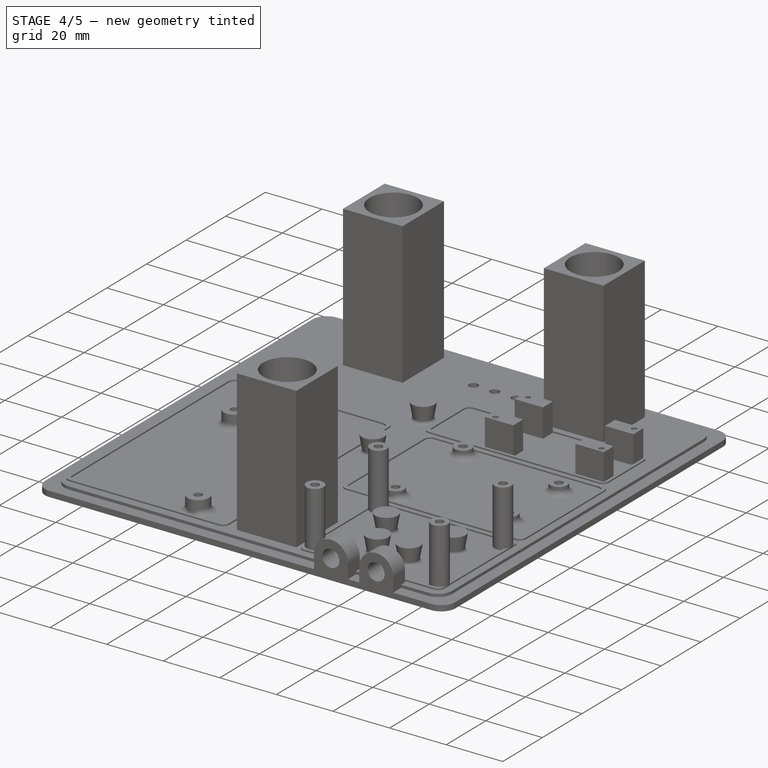
[diagram: stage 4 of 5 — iso view after this stage's code; geometry added in this stage tinted green]
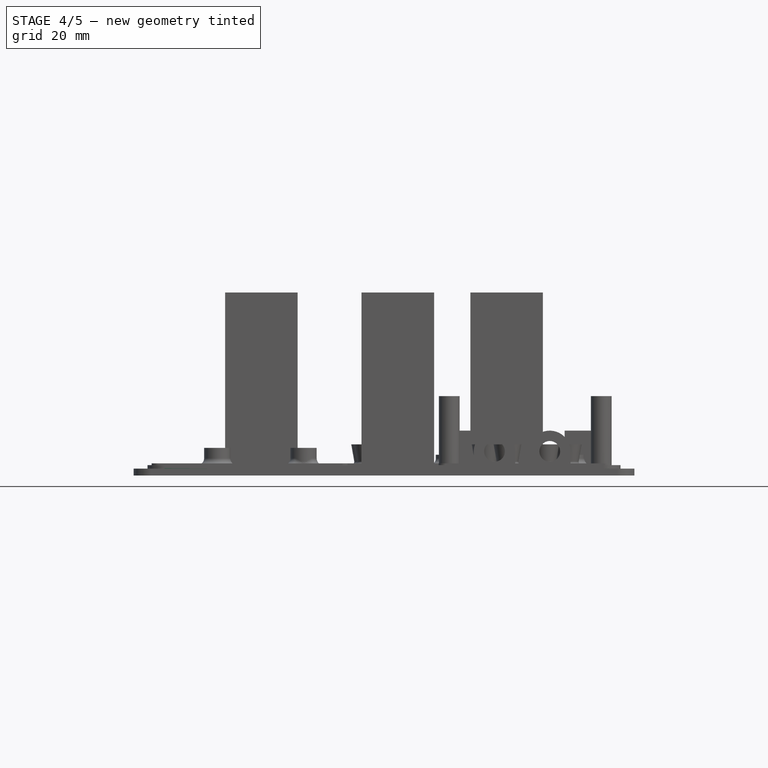
[diagram: stage 4 of 5 — front view after this stage's code; geometry added in this stage tinted green]
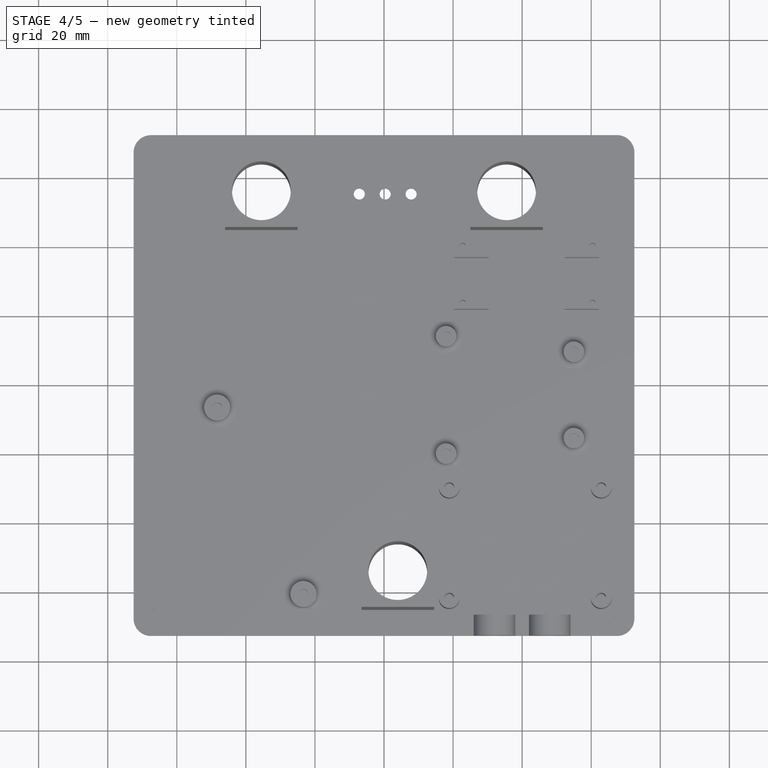
[diagram: stage 4 of 5 — top view after this stage's code; geometry added in this stage tinted green]
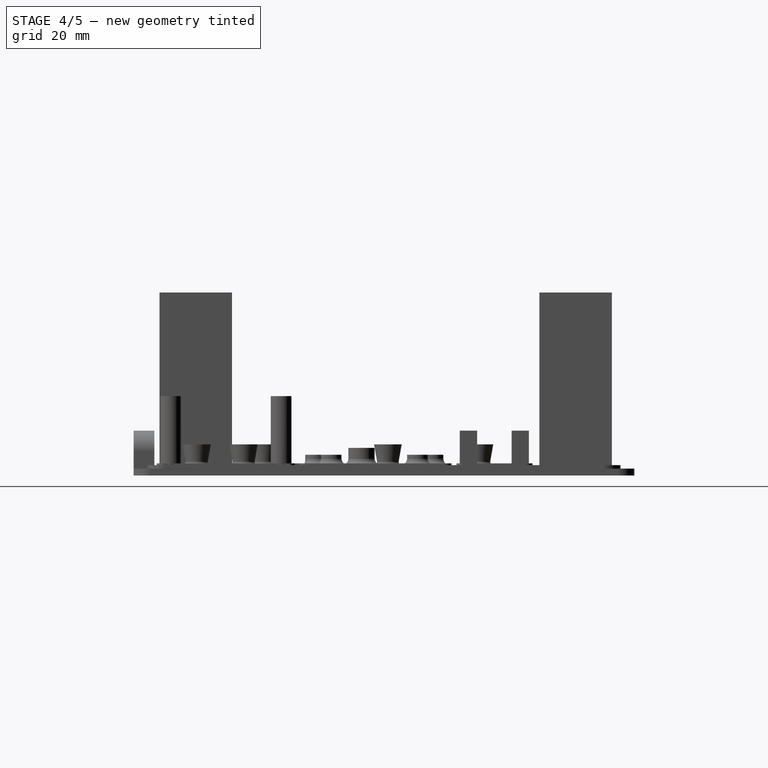
[diagram: stage 4 of 5 — right view after this stage's code; geometry added in this stage tinted green]
FEATURE [Sketcher::SketchObject] Sketch012  label="SketchPowerConverterMounting"
  Placement = pos=(0,0,2.1) rot=(0,0,1;0rad)
  Support = -> Pad004 [Face5]
  sketch-geometry (21):
    g0: LineSegment StartX=20.299 StartY=41.9513 StartZ=0 EndX=30.299 EndY=41.9513 EndZ=0
    g1: LineSegment StartX=30.299 StartY=21.9513 StartZ=0 EndX=20.299 EndY=21.9513 EndZ=0
    g2: LineSegment StartX=52.299 StartY=41.9513 StartZ=0 EndX=62.299 EndY=41.9513 EndZ=0
    g3: LineSegment StartX=62.299 StartY=41.9513 StartZ=0 EndX=62.299 EndY=36.9513 EndZ=0
    g4: LineSegment StartX=62.299 StartY=36.9513 StartZ=0 EndX=52.299 EndY=36.9513 EndZ=0
    g5: LineSegment StartX=52.299 StartY=36.9513 StartZ=0 EndX=52.299 EndY=41.9513 EndZ=0
    g6: LineSegment StartX=52.299 StartY=26.9513 StartZ=0 EndX=62.299 EndY=26.9513 EndZ=0
    g7: LineSegment StartX=62.299 StartY=26.9513 StartZ=0 EndX=62.299 EndY=21.9513 EndZ=0
    g8: LineSegment StartX=62.299 StartY=21.9513 StartZ=0 EndX=52.299 EndY=21.9513 EndZ=0
    g9: LineSegment StartX=52.299 StartY=21.9513 StartZ=0 EndX=52.299 EndY=26.9513 EndZ=0
    g10: LineSegment [constr] StartX=20.3136 StartY=31.9513 StartZ=0 EndX=62.1499 EndY=31.9513 EndZ=0
    g11: Circle CenterX=22.799 CenterY=40.2013 CenterZ=0 NormalX=0 NormalY=0 NormalZ=1 Radius=0.9
    g12: Circle CenterX=22.799 CenterY=23.7013 CenterZ=0 NormalX=0 NormalY=0 NormalZ=1 Radius=0.9
    g13: Circle CenterX=60.299 CenterY=40.2013 CenterZ=0 NormalX=0 NormalY=0 NormalZ=1 Radius=0.9
    g14: Circle CenterX=60.299 CenterY=23.7013 CenterZ=0 NormalX=0 NormalY=0 NormalZ=1 Radius=0.9
    g15: LineSegment StartX=20.299 StartY=41.9513 StartZ=0 EndX=20.299 EndY=36.9513 EndZ=0
    g16: LineSegment StartX=20.299 StartY=36.9513 StartZ=0 EndX=30.299 EndY=36.9513 EndZ=0
    g17: LineSegment StartX=30.299 StartY=36.9513 StartZ=0 EndX=30.299 EndY=41.9513 EndZ=0
    g18: LineSegment StartX=20.299 StartY=21.9513 StartZ=0 EndX=20.299 EndY=26.9513 EndZ=0
    g19: LineSegment StartX=20.299 StartY=26.9513 StartZ=0 EndX=30.299 EndY=26.9513 EndZ=0
    g20: LineSegment StartX=30.299 StartY=26.9513 StartZ=0 EndX=30.299 EndY=21.9513 EndZ=0
  constraints (57):
    c: Horizontal(g0)
    c: Horizontal(g1)
    c: Coincident(g2,g3)
    c: Coincident(g4,g5)
    c: Coincident(g5,g2)
    c: Horizontal(g2)
    c: Horizontal(g4)
    c: Vertical(g3)
    c: Vertical(g5)
    c: Coincident(g6,g7)
    c: Coincident(g7,g8)
    c: Coincident(g8,g9)
    c: Coincident(g9,g6)
    c: Horizontal(g6)
    c: Horizontal(g8)
    c: Vertical(g7)
    c: Vertical(g9)
    c: Distance(g0) = 10
    c: Equal(g6,g4)
    c: Distance(g6) = 10
    c: Horizontal(g10)
    c: Symmetric(g3,g6,g10)
    c: Symmetric(g0,g1,g10)
    c: DistanceX(g7,g1) = -42
    c: Equal(g14,g12)
    c: Equal(g12,g11)
    c: Equal(g11,g13)
    c: Radius(g11) = 0.9
    c: Symmetric(g11,g12,g10)
    c: DistanceY(g12,g11) = 16.5
    c: DistanceY(g0,g1) = -20
    c: DistanceY(g13,g14) = -16.5
    c: Symmetric(g13,g14,g10)
    c: DistanceX(g11,g13) = 37.5
    c: DistanceX(g12,g1) = -2.5
    c: DistanceY(g3,g6) = -10
    c: Coincident(g4,g3)
    c: DistanceX(g2,g13) = -2
    c: Coincident(g0,g15)
    c: Vertical(g15)
    c: Coincident(g15,g16)
    c: Horizontal(g16)
    c: Coincident(g16,g17)
    c: Coincident(g17,g0)
    c: Vertical(g17)
    c: Coincident(g1,g18)
    c: Vertical(g18)
    c: Coincident(g18,g19)
    c: Horizontal(g19)
    c: Coincident(g19,g20)
    c: Coincident(g20,g1)
    c: Vertical(g20)
    c: Equal(g19,g0)
    c: Distance(g5) = 5
    c: Equal(g17,g5)
    c: Equal(g5,g9)
    c: Equal(g17,g20)
FEATURE [PartDesign::Pad] Pad005  label="PowerConverterMounting"
  Length = 10
  Length2 = 100
  Sketch = -> Sketch012
  Type = 0
FEATURE [Sketcher::SketchObject] Sketch013  label="SketchRFIDMounting"
  Placement = pos=(0,0,2.1) rot=(0,0,1;0rad)
  Support = -> Pad005 [Face5]
  sketch-geometry (12):
    g0: Circle CenterX=18 CenterY=14.2 CenterZ=0 NormalX=0 NormalY=0 NormalZ=1 Radius=3
    g1: Circle CenterX=18 CenterY=-19.8 CenterZ=0 NormalX=0 NormalY=0 NormalZ=1 Radius=3
    g2: Circle CenterX=55 CenterY=9.7 CenterZ=0 NormalX=0 NormalY=0 NormalZ=1 Radius=3
    g3: Circle CenterX=55 CenterY=-15.3 CenterZ=0 NormalX=0 NormalY=0 NormalZ=1 Radius=3
    g4: LineSegment [constr] StartX=55 StartY=9.7 StartZ=0 EndX=55 EndY=-15.3 EndZ=0
    g5: Circle CenterX=18 CenterY=14.2 CenterZ=0 NormalX=0 NormalY=0 NormalZ=1 Radius=1.4
    g6: Circle CenterX=55 CenterY=9.7 CenterZ=0 NormalX=0 NormalY=0 NormalZ=1 Radius=1.4
    g7: Circle CenterX=55 CenterY=-15.3 CenterZ=0 NormalX=0 NormalY=0 NormalZ=1 Radius=1.4
    g8: Circle CenterX=18 CenterY=-19.8 CenterZ=0 NormalX=0 NormalY=0 NormalZ=1 Radius=1.4
    g9: LineSegment [constr] StartX=18 StartY=-2.8 StartZ=0 EndX=55 EndY=-2.8 EndZ=0
    g10: LineSegment [constr] StartX=18 StartY=14.2 StartZ=0 EndX=18 EndY=-2.8 EndZ=0
    g11: LineSegment [constr] StartX=18 StartY=-2.8 StartZ=0 EndX=18 EndY=-19.8 EndZ=0
  constraints (30):
    c: Equal(g2,g0)
    c: Equal(g0,g1)
    c: Equal(g1,g3)
    c: Radius(g0) = 3
    c: DistanceX(g2,g0) = -37
    c: DistanceY(g3,g2) = 25
    c: DistanceY(g0,g1) = -34
    c: Coincident(g4,g2)
    c: Vertical(g4)
    c: Coincident(g5,g0)
    c: Coincident(g6,g2)
    c: Coincident(g7,g3)
    c: Coincident(g8,g1)
    c: Equal(g6,g5)
    c: Equal(g5,g8)
    c: Equal(g8,g7)
    c: Radius(g7) = 1.4
    c: Coincident(g4,g3)
    c: PointOnObject(g9,g4)
    c: Horizontal(g9)
    c: Symmetric(g2,g3,g9)
    c: Coincident(g10,g0)
    c: Coincident(g10,g9)
    c: Vertical(g10)
    c: Coincident(g11,g9)
    c: Coincident(g11,g1)
    c: Vertical(g11)
    c: Equal(g11,g10)
    c: DistanceX(g-1,g9) = 18
    c: DistanceY(g-1,g9) = -2.8
FEATURE [PartDesign::Pad] Pad006  label="RFIDMounting"
  Length = 3
  Length2 = 100
  Sketch = -> Sketch013
  Type = 0
FEATURE [Sketcher::SketchObject] Sketch014  label="SketchCasePocket"
  Placement = pos=(0,0,2.1) rot=(0,0,1;0rad)
  Support = -> Pad006 [Face5]
  sketch-geometry (16):
    g0: LineSegment StartX=-67.5 StartY=72.5 StartZ=0 EndX=67.5 EndY=72.5 EndZ=0
    g1: LineSegment StartX=72.5 StartY=67.5 StartZ=0 EndX=72.5 EndY=-67.5 EndZ=0
    g2: LineSegment StartX=67.5 StartY=-72.5 StartZ=0 EndX=-67.5 EndY=-72.5 EndZ=0
    g3: LineSegment StartX=-72.5 StartY=-67.5 StartZ=0 EndX=-72.5 EndY=67.5 EndZ=0
    g4: ArcOfCircle CenterX=-67.5 CenterY=67.5 CenterZ=0 NormalX=0 NormalY=0 NormalZ=1 Radius=5 StartAngle=1.5708 EndAngle=3.14159
    g5: ArcOfCircle CenterX=67.5 CenterY=67.5 CenterZ=0 NormalX=0 NormalY=0 NormalZ=1 Radius=5 StartAngle=0 EndAngle=1.5708
    g6: ArcOfCircle CenterX=67.5 CenterY=-67.5 CenterZ=0 NormalX=0 NormalY=0 NormalZ=1 Radius=5 StartAngle=4.71239 EndAngle=6.28319
    g7: ArcOfCircle CenterX=-67.5 CenterY=-67.5 CenterZ=0 NormalX=0 NormalY=0 NormalZ=1 Radius=5 StartAngle=3.14159 EndAngle=4.71239
    g8: LineSegment StartX=-63.5 StartY=68.5 StartZ=0 EndX=63.5 EndY=68.5 EndZ=0
    g9: LineSegment StartX=68.5 StartY=63.5 StartZ=0 EndX=68.5 EndY=-63.5 EndZ=0
    g10: LineSegment StartX=63.5 StartY=-68.5 StartZ=0 EndX=-63.5 EndY=-68.5 EndZ=0
    g11: LineSegment StartX=-68.5 StartY=-63.5 StartZ=0 EndX=-68.5 EndY=63.5 EndZ=0
    g12: ArcOfCircle CenterX=-63.5 CenterY=63.5 CenterZ=0 NormalX=0 NormalY=0 NormalZ=1 Radius=5 StartAngle=1.5708 EndAngle=3.14159
    g13: ArcOfCircle CenterX=63.5 CenterY=63.5 CenterZ=0 NormalX=0 NormalY=0 NormalZ=1 Radius=5 StartAngle=0 EndAngle=1.5708
    g14: ArcOfCircle CenterX=63.5 CenterY=-63.5 CenterZ=0 NormalX=0 NormalY=0 NormalZ=1 Radius=5 StartAngle=4.71239 EndAngle=6.28319
    g15: ArcOfCircle CenterX=-63.5 CenterY=-63.5 CenterZ=0 NormalX=0 NormalY=0 NormalZ=1 Radius=5 StartAngle=3.14159 EndAngle=4.71239
  constraints (37):
    c: Horizontal(g0)
    c: Horizontal(g2)
    c: Tangent(g3,g4) = 1.5708
    c: Tangent(g0,g4) = 1.5708
    c: Tangent(g0,g5) = 1.5708
    c: Tangent(g1,g5) = 1.5708
    c: Tangent(g1,g6) = 1.5708
    c: Tangent(g2,g6) = 1.5708
    c: Tangent(g3,g7) = 1.5708
    c: Tangent(g2,g7) = 1.5708
    c: Equal(g7,g4)
    c: Equal(g4,g5)
    c: Equal(g5,g6)
    c: Symmetric(g3,g1,g-2)
    c: Symmetric(g0,g2,g-1)
    c: DistanceX(g3,g1) = 145
    c: DistanceY(g0,g2) = -145
    c: Radius(g4) = 5
    c: Horizontal(g8)
    c: Horizontal(g10)
    c: Tangent(g11,g12) = 1.5708
    c: Tangent(g8,g12) = 1.5708
    c: Tangent(g8,g13) = 1.5708
    c: Tangent(g9,g13) = 1.5708
    c: Tangent(g9,g14) = 1.5708
    c: Tangent(g10,g14) = 1.5708
    c: Tangent(g11,g15) = 1.5708
    c: Tangent(g10,g15) = 1.5708
    c: Equal(g15,g12)
    c: Equal(g12,g13)
    c: Equal(g13,g14)
    c: DistanceX(g11,g9) = 137
    c: DistanceY(g8,g10) = -137
    c: Equal(g4,g12) = 5
    c: Symmetric(g8,g10,g-1)
    c: Vertical(g9)
    c: Symmetric(g11,g9,g-2)
FEATURE [PartDesign::Pocket] Pocket001  label="CasePocket"
  Length = 0.9
  Sketch = -> Sketch014
  Type = 0
FEATURE [Sketcher::SketchObject] Sketch005  label="SketchStatusLEDs"
  Placement = pos=(0,0,2.1) rot=(0,0,1;0rad)
  Support = -> Pocket001 [Face25]
  sketch-geometry (5):
    g0: Circle CenterX=-7.15524 CenterY=55.4316 CenterZ=0 NormalX=0 NormalY=0 NormalZ=1 Radius=1.6
    g1: Circle CenterX=0.344761 CenterY=55.4316 CenterZ=0 NormalX=0 NormalY=0 NormalZ=1 Radius=1.6
    g2: Circle CenterX=7.84476 CenterY=55.4316 CenterZ=0 NormalX=0 NormalY=0 NormalZ=1 Radius=1.6
    g3: LineSegment [constr] StartX=-7.15524 StartY=55.4316 StartZ=0 EndX=0.344761 EndY=55.4316 EndZ=0
    g4: LineSegment [constr] StartX=0.344761 StartY=55.4316 StartZ=0 EndX=7.84476 EndY=55.4316 EndZ=0
  constraints (11):
    c: Equal(g0,g1)
    c: Equal(g1,g2)
    c: Coincident(g3,g0)
    c: Coincident(g3,g1)
    c: Horizontal(g3)
    c: Coincident(g3,g4)
    c: Coincident(g4,g2)
    c: Horizontal(g4)
    c: Equal(g3,g4)
    c: Radius(g2) = 1.6
    c: DistanceX(g2,g0) = -15
FEATURE [PartDesign::Pocket] Pocket002  label="StatusLeds"
  Length = 5
  Sketch = -> Sketch005
  Type = 1
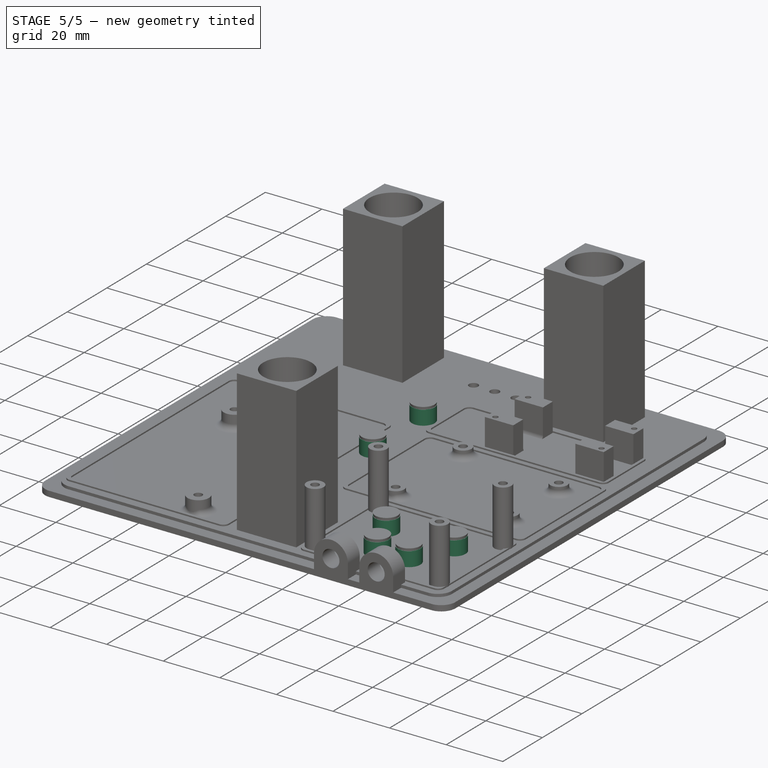
[diagram: stage 5 of 5 — iso view after this stage's code; geometry added in this stage tinted green]
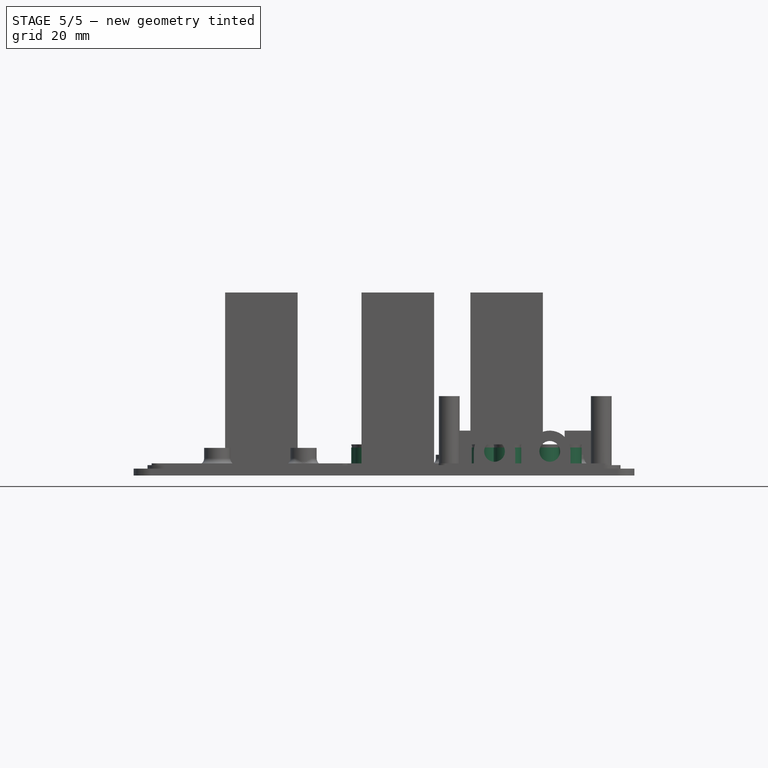
[diagram: stage 5 of 5 — front view after this stage's code; geometry added in this stage tinted green]
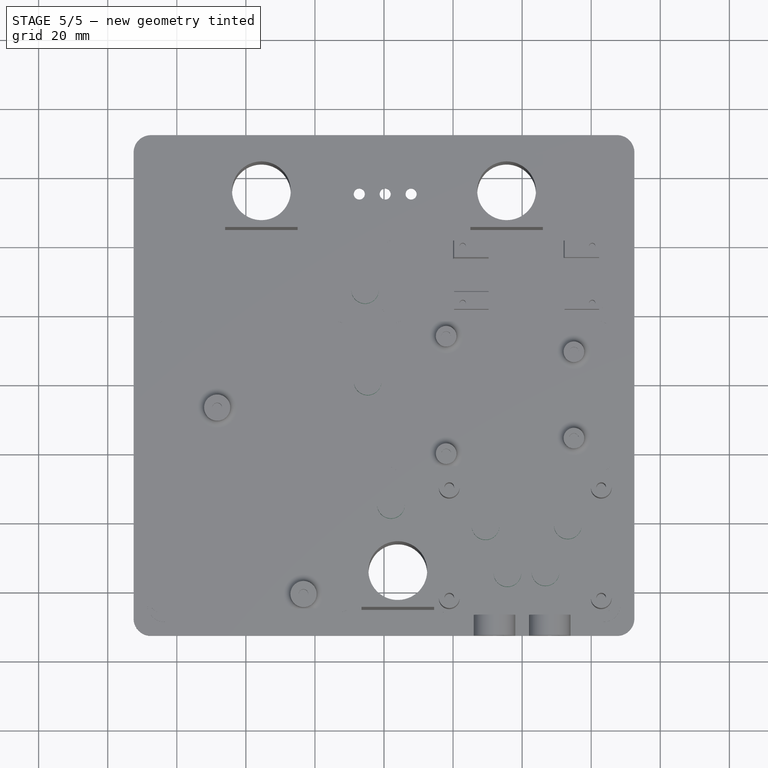
[diagram: stage 5 of 5 — top view after this stage's code; geometry added in this stage tinted green]
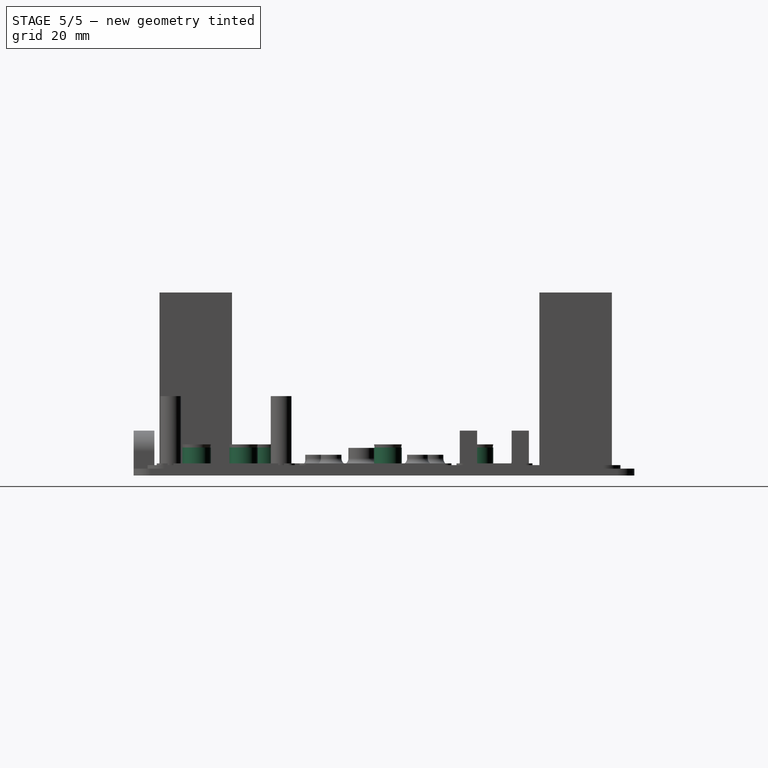
[diagram: stage 5 of 5 — right view after this stage's code; geometry added in this stage tinted green]
FEATURE [Sketcher::SketchObject] Sketch015  label="SketchCableRoute"
  Placement = pos=(0,0,2.1) rot=(0,0,1;0rad)
  Support = -> Pocket002 [Face26]
  sketch-geometry (7):
    g0: Circle CenterX=35.7438 CenterY=-54.377 CenterZ=0 NormalX=0 NormalY=0 NormalZ=1 Radius=4
    g1: Circle CenterX=29.4118 CenterY=-40.7749 CenterZ=0 NormalX=0 NormalY=0 NormalZ=1 Radius=4
    g2: Circle CenterX=2.02931 CenterY=-34.602 CenterZ=0 NormalX=0 NormalY=0 NormalZ=1 Radius=4
    g3: Circle CenterX=-5.48225 CenterY=27.6389 CenterZ=0 NormalX=0 NormalY=0 NormalZ=1 Radius=4
    g4: Circle CenterX=-4.7371 CenterY=1.12842 CenterZ=0 NormalX=0 NormalY=0 NormalZ=1 Radius=4
    g5: Circle CenterX=53.2255 CenterY=-40.5484 CenterZ=0 NormalX=0 NormalY=0 NormalZ=1 Radius=4
    g6: Circle CenterX=46.7437 CenterY=-54.1169 CenterZ=0 NormalX=0 NormalY=0 NormalZ=1 Radius=4
  constraints (7):
    c: Equal(g3,g2)
    c: Equal(g2,g1)
    c: Equal(g1,g0)
    c: Radius(g0) = 4
    c: Equal(g3,g4)
    c: Equal(g0,g6)
    c: Equal(g6,g5)
FEATURE [PartDesign::Pad] Pad007  label="CableRoute"
  Length = 6
  Length2 = 100
  Sketch = -> Sketch015
  Type = 0
FEATURE [Sketcher::SketchObject] Sketch016  label="SketchCableHole"
  Placement = pos=(0,-72.5,0) rot=(1,0,0;1.5708rad)
  Support = -> Pad007 [Face6]
  sketch-geometry (10):
    g0: ArcOfCircle CenterX=32 CenterY=6.99 CenterZ=0 NormalX=0 NormalY=0 NormalZ=1 Radius=6 StartAngle=0 EndAngle=3.14159
    g1: LineSegment StartX=26 StartY=6.99 StartZ=0 EndX=26 EndY=1.99 EndZ=0
    g2: LineSegment StartX=38 StartY=6.99 StartZ=0 EndX=38 EndY=1.99 EndZ=0
    g3: LineSegment StartX=26 StartY=1.99 StartZ=0 EndX=38 EndY=1.99 EndZ=0
    g4: Circle CenterX=32 CenterY=6.99 CenterZ=0 NormalX=0 NormalY=0 NormalZ=1 Radius=3
    g5: ArcOfCircle CenterX=48 CenterY=6.99 CenterZ=0 NormalX=0 NormalY=0 NormalZ=1 Radius=6 StartAngle=0 EndAngle=3.14159
    g6: LineSegment StartX=42 StartY=6.99 StartZ=0 EndX=42 EndY=1.99 EndZ=0
    g7: LineSegment StartX=54 StartY=6.99 StartZ=0 EndX=54 EndY=1.99 EndZ=0
    g8: LineSegment StartX=42 StartY=1.99 StartZ=0 EndX=54 EndY=1.99 EndZ=0
    g9: Circle CenterX=48 CenterY=6.99 CenterZ=0 NormalX=0 NormalY=0 NormalZ=1 Radius=3
  constraints (31):
    c: Angle(g0) = 3.14159
    c: Coincident(g1,g0)
    c: Vertical(g1)
    c: Coincident(g2,g0)
    c: Vertical(g2)
    c: DistanceY(g-1,g1) = 1.99
    c: Equal(g2,g1)
    c: Coincident(g3,g1)
    c: Coincident(g3,g2)
    c: Horizontal(g3)
    c: Coincident(g4,g0)
    c: Radius(g0) = 6
    c: DistanceX(g-1,g1) = 26
    c: Radius(g4) = 3
    c: Distance(g2) = 5
    c: Parallel(g0,g5) = 3.14159
    c: Coincident(g6,g5)
    c: Vertical(g6)
    c: Coincident(g7,g5)
    c: Vertical(g7)
    c: Equal(g7,g6)
    c: Coincident(g8,g6)
    c: Coincident(g8,g7)
    c: Horizontal(g8)
    c: Coincident(g9,g5)
    c: Equal(g0,g5) = 6
    c: Radius(g9) = 3
    c: DistanceX(g2,g6) = 4
    c: Equal(g7,g2)
    c: DistanceY(g-1,g6) = 1.99
    c: Angle(g5) = 3.14159
FEATURE [PartDesign::Pad] Pad008  label="CableHole"
  Length = 6
  Length2 = 100
  Reversed = true
  Sketch = -> Sketch016
  Type = 0
FEATURE [PartDesign::Fillet] Fillet
  Base = -> Pad008 [Edge462,Edge463,Edge464,Edge461]
  Radius = 2
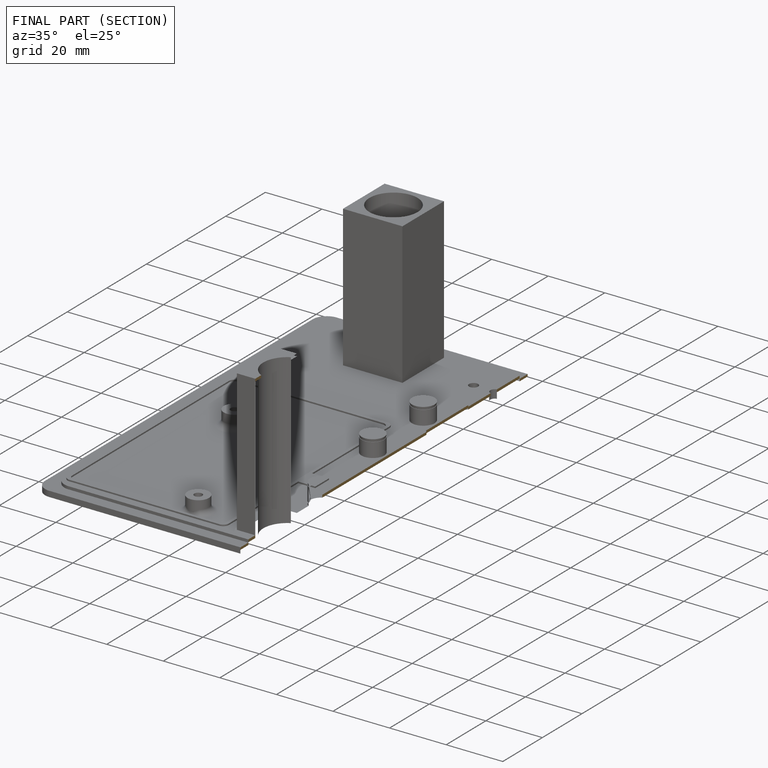
[diagram: finished part — half-section view (interior)]
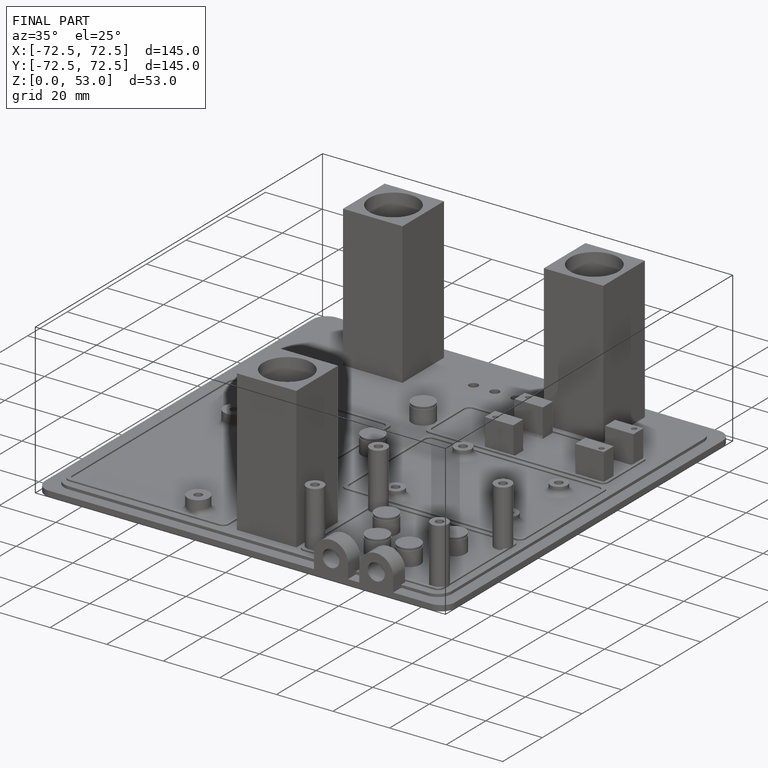
[diagram: finished part — iso view with bounding-box wireframe]
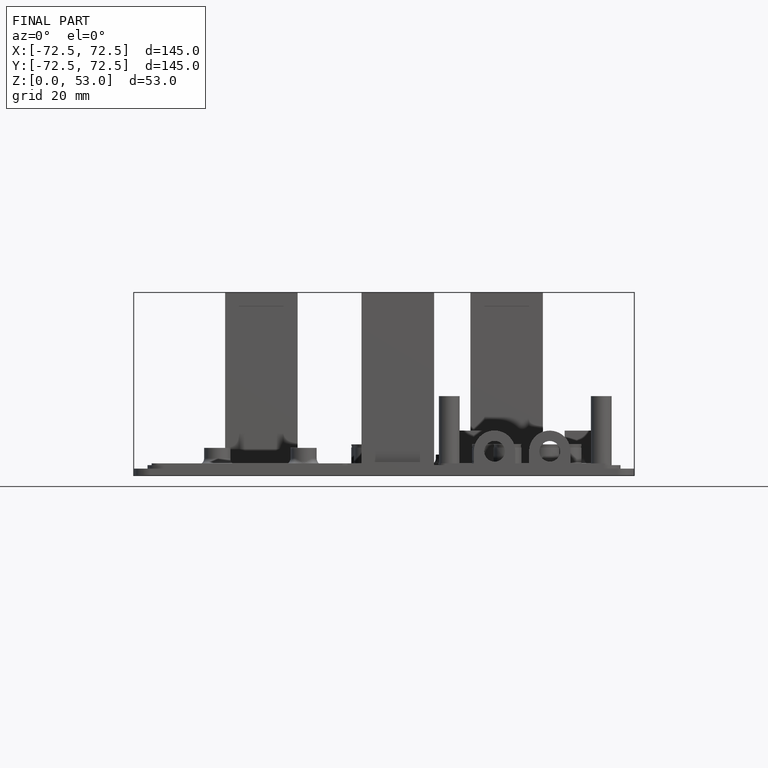
[diagram: finished part — front view with bounding-box wireframe]
